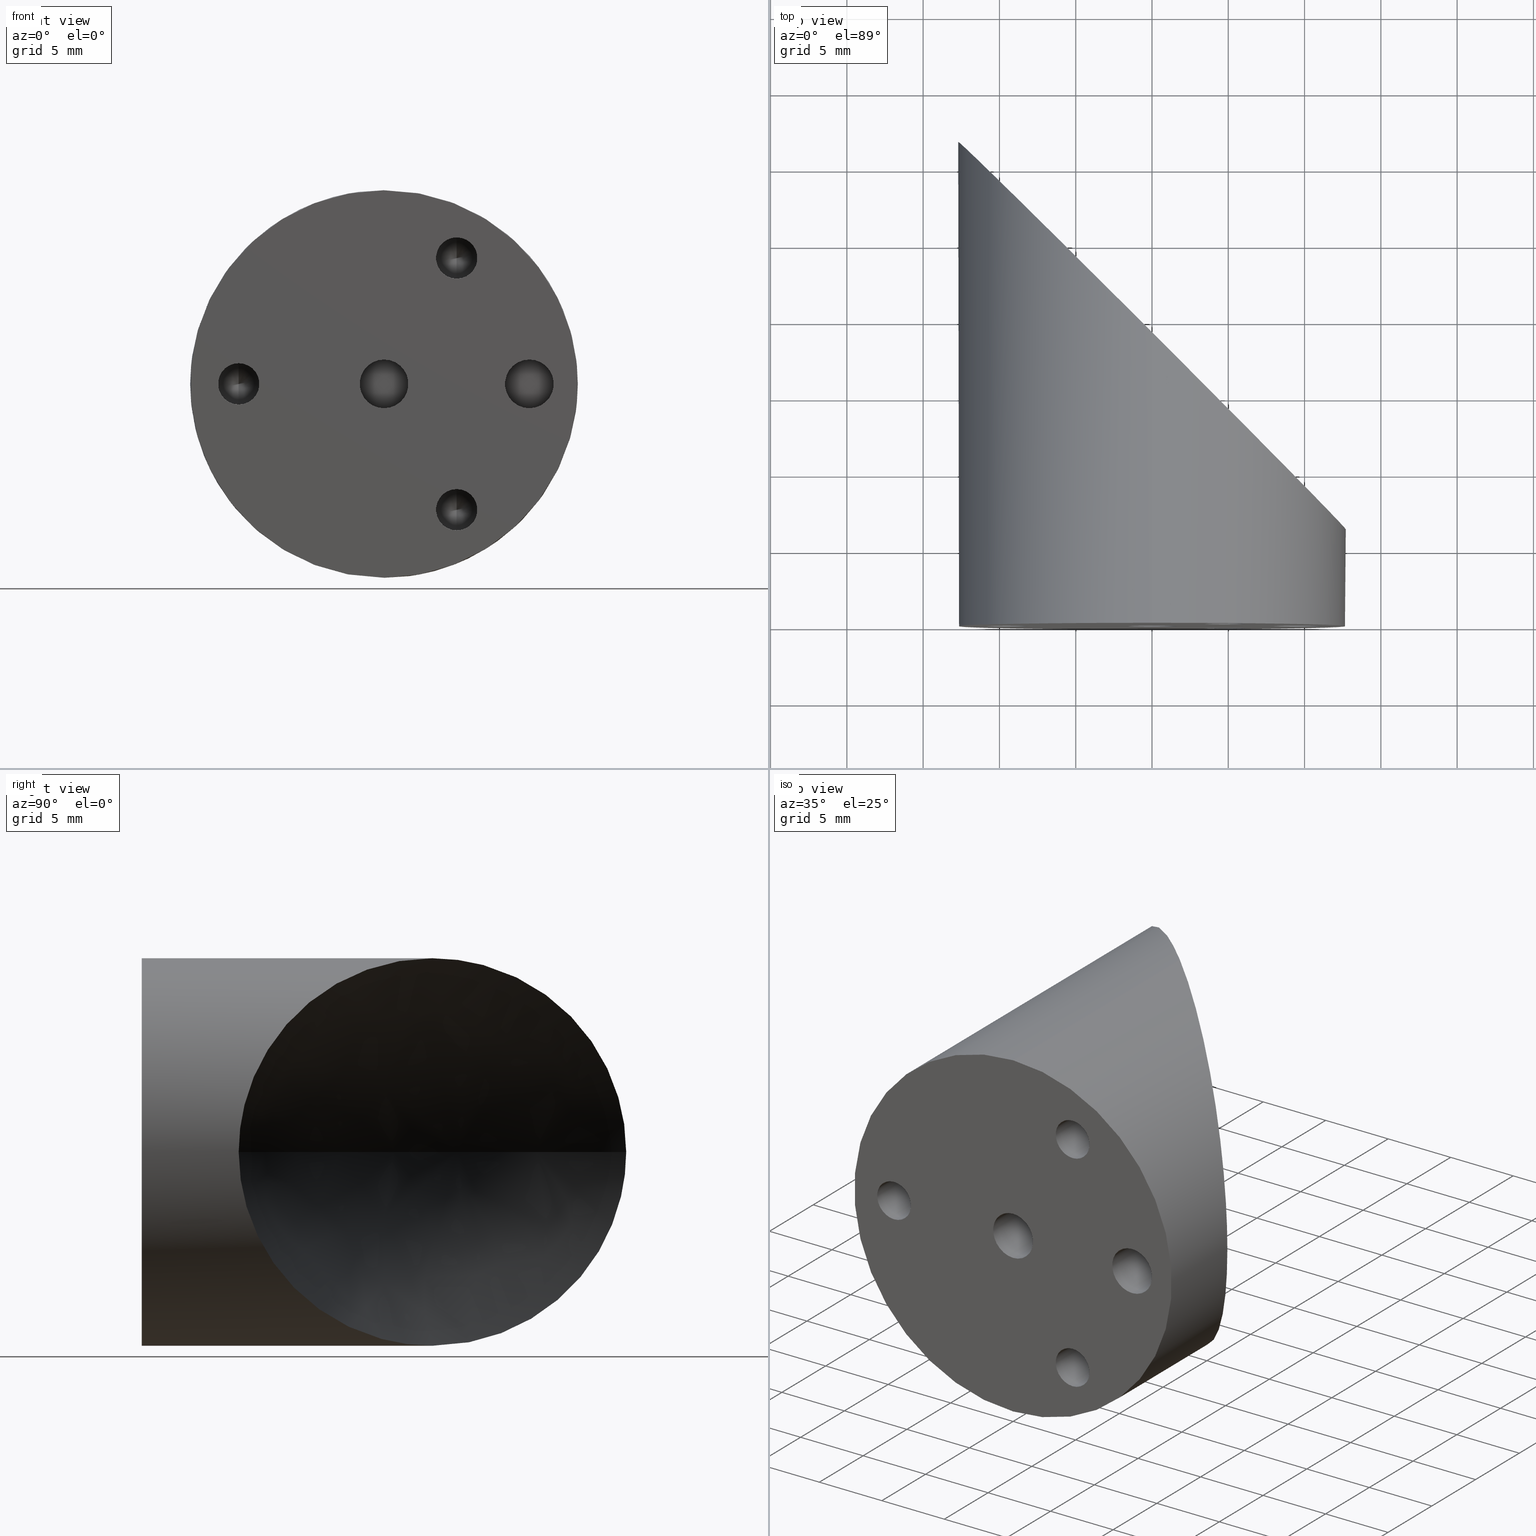
[diagram: canonical four-view strip — front | top / right | iso, engineering-drawing reading convention]
A machine part, canonical four-view strip (front | top / right | iso — engineering-drawing reading convention). The complete STEP part file that produces these views, byte-faithful:
ISO-10303-21;
HEADER;
FILE_DESCRIPTION (( 'STEP AP203' ),
    '1' );
FILE_NAME ('�25_35500.step',
    '2019-04-24T19:54:07',
    ( '' ),
    ( '' ),
    'SwSTEP 2.0',
    'SolidWorks 2018',
    '' );
FILE_SCHEMA (( 'CONFIG_CONTROL_DESIGN' ));
ENDSEC;

DATA;
#1 = VECTOR ( 'NONE', #509, 1000.000000000000000 ) ;
#2 = DIRECTION ( 'NONE',  ( 1.049727191138617956E-16, -0.5150380749100550437, 0.8571673007021117785 ) ) ;
#3 = ORIENTED_EDGE ( 'NONE', *, *, #448, .T. ) ;
#4 = CARTESIAN_POINT ( 'NONE',  ( -12.69249412803795884, 31.74249412803214199, 0.5052820024974280511 ) ) ;
#5 = CARTESIAN_POINT ( 'NONE',  ( 10.92750238881474090, 8.122497611184057220, -6.486682638810928658 ) ) ;
#6 = AXIS2_PLACEMENT_3D ( 'NONE', #440, #622, #628 ) ;
#7 = CARTESIAN_POINT ( 'NONE',  ( -5.608145036435865372, 24.65814503643128575, 11.41982166920501918 ) ) ;
#8 = CARTESIAN_POINT ( 'NONE',  ( 7.573415272198094961, 11.47658472779975725, -10.20226619455181094 ) ) ;
#9 = DATE_AND_TIME ( #483, #293 ) ;
#10 = DIRECTION ( 'NONE',  ( 1.049727191138618079E-16, -0.5150380749100549327, 0.8571673007021118895 ) ) ;
#11 = DIRECTION ( 'NONE',  ( -0.0000000000000000000, -1.000000000000000000, -0.0000000000000000000 ) ) ;
#12 = ORIENTED_EDGE ( 'NONE', *, *, #399, .T. ) ;
#13 = CARTESIAN_POINT ( 'NONE',  ( -10.18348070194067745, 29.23348070193521764, 7.600599108316940189 ) ) ;
#14 = DIRECTION ( 'NONE',  ( -0.0000000000000000000, -1.000000000000000000, -0.0000000000000000000 ) ) ;
#15 = CARTESIAN_POINT ( 'NONE',  ( -11.75175387139110583, 30.80175387138496035, 4.839139750495472292 ) ) ;
#16 = CARTESIAN_POINT ( 'NONE',  ( -1.554745915344213358E-13, 19.04999999999704130, -12.70000000000007567 ) ) ;
#17 = EDGE_CURVE ( 'NONE', #671, #646, #279, .T. ) ;
#18 = CARTESIAN_POINT ( 'NONE',  ( -1.554745915344213358E-13, 19.04999999999704130, -12.70000000000007567 ) ) ;
#19 = COORDINATED_UNIVERSAL_TIME_OFFSET ( 5, 0, .BEHIND. ) ;
#20 = CARTESIAN_POINT ( 'NONE',  ( 11.56254631237877817, 7.487453687619861853, 5.273548236710835724 ) ) ;
#21 = EDGE_CURVE ( 'NONE', #192, #497, #739, .T. ) ;
#22 = FACE_OUTER_BOUND ( 'NONE', #433, .T. ) ;
#23 = CIRCLE ( 'NONE', #124, 1.352549999999999253 ) ;
#24 = CARTESIAN_POINT ( 'NONE',  ( 0.7136360518803812614, 18.33636394811686188, 12.68501935683181436 ) ) ;
#25 = AXIS2_PLACEMENT_3D ( 'NONE', #292, #60, #676 ) ;
#26 = ORIENTED_EDGE ( 'NONE', *, *, #21, .T. ) ;
#27 = VERTEX_POINT ( 'NONE', #196 ) ;
#28 = CARTESIAN_POINT ( 'NONE',  ( 0.0000000000000000000, 0.0000000000000000000, 0.0000000000000000000 ) ) ;
#29 = CARTESIAN_POINT ( 'NONE',  ( 3.553757434003499860, 15.49624256599401839, -12.21445827631342418 ) ) ;
#30 = DIRECTION ( 'NONE',  ( 0.0000000000000000000, 1.000000000000000000, 0.0000000000000000000 ) ) ;
#31 = AXIS2_PLACEMENT_3D ( 'NONE', #359, #542, #782 ) ;
#32 = CARTESIAN_POINT ( 'NONE',  ( 0.0000000000000000000, 0.0000000000000000000, -12.69999999999999929 ) ) ;
#33 = CARTESIAN_POINT ( 'NONE',  ( -9.372236973100289248, 28.42223697309533037, -8.580475212564618204 ) ) ;
#34 = DIRECTION ( 'NONE',  ( 0.0000000000000000000, 0.0000000000000000000, -1.000000000000000000 ) ) ;
#35 = CARTESIAN_POINT ( 'NONE',  ( 1.193707575149340894, 12.62334279999809183, -8.939368213490443082 ) ) ;
#36 = FACE_OUTER_BOUND ( 'NONE', #330, .T. ) ;
#37 = ORIENTED_EDGE ( 'NONE', *, *, #90, .F. ) ;
#38 = EDGE_CURVE ( 'NONE', #604, #72, #437, .T. ) ;
#39 = ORIENTED_EDGE ( 'NONE', *, *, #581, .F. ) ;
#40 = EDGE_LOOP ( 'NONE', ( #687, #220, #517, #391 ) ) ;
#41 = DIRECTION ( 'NONE',  ( -0.0000000000000000000, -1.000000000000000000, -0.0000000000000000000 ) ) ;
#42 = ORIENTED_EDGE ( 'NONE', *, *, #17, .T. ) ;
#43 = CARTESIAN_POINT ( 'NONE',  ( 3.497473023158240935, 12.62334279999809183, -12.86232140901330112 ) ) ;
#44 = CARTESIAN_POINT ( 'NONE',  ( 14.58015167343994278, 6.274257199998505286, -6.353986776052699348 ) ) ;
#45 = CIRCLE ( 'NONE', #118, 1.352549999999999253 ) ;
#46 = DIRECTION ( 'NONE',  ( 0.0000000000000000000, 0.0000000000000000000, -1.000000000000000000 ) ) ;
#47 = FACE_OUTER_BOUND ( 'NONE', #661, .T. ) ;
#48 = ORIENTED_EDGE ( 'NONE', *, *, #367, .T. ) ;
#49 = AXIS2_PLACEMENT_3D ( 'NONE', #216, #408, #46 ) ;
#50 = CARTESIAN_POINT ( 'NONE',  ( -12.85240000000090532, 31.97905719999516450, -2.079933447696191706E-12 ) ) ;
#51 = CARTESIAN_POINT ( 'NONE',  ( 4.762500000000009948, 0.0000000000000000000, -8.248891971046772298 ) ) ;
#52 = FACE_OUTER_BOUND ( 'NONE', #392, .T. ) ;
#53 = CARTESIAN_POINT ( 'NONE',  ( 0.0000000000000000000, 0.0000000000000000000, 0.0000000000000000000 ) ) ;
#54 = ORIENTED_EDGE ( 'NONE', *, *, #578, .T. ) ;
#55 = VERTEX_POINT ( 'NONE', #566 ) ;
#56 = APPROVAL_STATUS ( 'not_yet_approved' ) ;
#57 = DIRECTION ( 'NONE',  ( -0.0000000000000000000, -1.000000000000000000, -0.0000000000000000000 ) ) ;
#58 = AXIS2_PLACEMENT_3D ( 'NONE', #462, #41, #520 ) ;
#59 = CC_DESIGN_PERSON_AND_ORGANIZATION_ASSIGNMENT ( #568, #285, ( #351 ) ) ;
#60 = DIRECTION ( 'NONE',  ( -0.0000000000000000000, -1.000000000000000000, -0.0000000000000000000 ) ) ;
#61 = ADVANCED_FACE ( 'NONE', ( #47 ), #310, .T. ) ;
#62 = CYLINDRICAL_SURFACE ( 'NONE', #655, 1.352549999999999253 ) ;
#63 = EDGE_LOOP ( 'NONE', ( #200, #3, #320, #461, #731 ) ) ;
#64 = DIRECTION ( 'NONE',  ( 0.0000000000000000000, 1.000000000000000000, 0.0000000000000000000 ) ) ;
#65 = VERTEX_POINT ( 'NONE', #579 ) ;
#66 = CYLINDRICAL_SURFACE ( 'NONE', #681, 1.593999999999998973 ) ;
#67 = CARTESIAN_POINT ( 'NONE',  ( -6.925631433273992776, 25.97563143326917512, 10.67235901554065514 ) ) ;
#68 = CARTESIAN_POINT ( 'NONE',  ( 10.19051452320380058, 8.859485476794548120, -7.591428080588519478 ) ) ;
#69 = AXIS2_PLACEMENT_3D ( 'NONE', #735, #119, #239 ) ;
#70 = CARTESIAN_POINT ( 'NONE',  ( -9.525000000000000355, 6.169999999999999929, 1.352549999999999253 ) ) ;
#71 = VECTOR ( 'NONE', #2, 1000.000000000000000 ) ;
#72 = VERTEX_POINT ( 'NONE', #212 ) ;
#73 = ORIENTED_EDGE ( 'NONE', *, *, #403, .F. ) ;
#74 = ORIENTED_EDGE ( 'NONE', *, *, #168, .T. ) ;
#75 = CARTESIAN_POINT ( 'NONE',  ( -0.7125630298000499296, 19.76256302979652091, 12.70000000000083951 ) ) ;
#76 = CARTESIAN_POINT ( 'NONE',  ( -9.525000000000000355, 0.0000000000000000000, -1.352549999999999253 ) ) ;
#77 = CARTESIAN_POINT ( 'NONE',  ( 12.69999999999990692, 6.349999999998527045, -0.5038967227124826476 ) ) ;
#78 = ADVANCED_FACE ( 'NONE', ( #677 ), #697, .F. ) ;
#79 = VECTOR ( 'NONE', #316, 1000.000000000000000 ) ;
#80 = CARTESIAN_POINT ( 'NONE',  ( -11.56407991278460479, 30.61407991280777807, 5.270275163643675320 ) ) ;
#81 = CARTESIAN_POINT ( 'NONE',  ( 12.57984097757650588, 6.470159022422377504, -1.761156337241454262 ) ) ;
#82 = LINE ( 'NONE', #424, #71 ) ;
#83 = VERTEX_POINT ( 'NONE', #156 ) ;
#84 = CARTESIAN_POINT ( 'NONE',  ( 12.08529452624549982, 6.964705473753187270, 3.933005294369428029 ) ) ;
#85 = CARTESIAN_POINT ( 'NONE',  ( -3.536057969781806865, 22.58605796977812830, -12.21969701679927844 ) ) ;
#86 = CARTESIAN_POINT ( 'NONE',  ( -12.70000000000056595, 31.74999999999483791, -1.927558305098982570E-12 ) ) ;
#87 = CARTESIAN_POINT ( 'NONE',  ( 0.0000000000000000000, 0.0000000000000000000, 0.0000000000000000000 ) ) ;
#88 = LINE ( 'NONE', #234, #426 ) ;
#89 = CARTESIAN_POINT ( 'NONE',  ( 7.876614981185150910, 11.17338501881254409, 9.970442349676716276 ) ) ;
#90 = EDGE_CURVE ( 'NONE', #432, #304, #336, .T. ) ;
#91 = CARTESIAN_POINT ( 'NONE',  ( -12.46055657107605263, 31.51055657107081842, -2.503858508733852517 ) ) ;
#92 = VECTOR ( 'NONE', #459, 1000.000000000000000 ) ;
#93 = CARTESIAN_POINT ( 'NONE',  ( -12.85240000000098526, 31.97905719999516450, 3.397495618173802472E-14 ) ) ;
#94 = VERTEX_POINT ( 'NONE', #32 ) ;
#95 = CARTESIAN_POINT ( 'NONE',  ( -11.56770164379194910, 30.61770164378661718, -5.262622158203639877 ) ) ;
#96 = CARTESIAN_POINT ( 'NONE',  ( 12.85239999999931726, 6.274257199998506174, -2.247395817304130183 ) ) ;
#97 = UNCERTAINTY_MEASURE_WITH_UNIT (LENGTH_MEASURE( 1.000000000000000082E-05 ), #237, 'distance_accuracy_value', 'NONE');
#98 = DIRECTION ( 'NONE',  ( -0.0000000000000000000, -1.000000000000000000, -0.0000000000000000000 ) ) ;
#99 = AXIS2_PLACEMENT_3D ( 'NONE', #720, #474, #466 ) ;
#100 = CARTESIAN_POINT ( 'NONE',  ( 9.525000000000000355, 0.0000000000000000000, 0.0000000000000000000 ) ) ;
#101 = DIRECTION ( 'NONE',  ( -0.0000000000000000000, -1.000000000000000000, -0.0000000000000000000 ) ) ;
#102 = AXIS2_PLACEMENT_3D ( 'NONE', #409, #469, #412 ) ;
#103 = CIRCLE ( 'NONE', #634, 12.69999999999999929 ) ;
#104 = ORIENTED_EDGE ( 'NONE', *, *, #706, .F. ) ;
#105 = CARTESIAN_POINT ( 'NONE',  ( 4.762500000000009948, 6.169999999999999929, -8.248891971046772298 ) ) ;
#106 = AXIS2_PLACEMENT_3D ( 'NONE', #602, #349, #675 ) ;
#107 = DIRECTION ( 'NONE',  ( -0.0000000000000000000, -1.000000000000000000, -0.0000000000000000000 ) ) ;
#108 = CARTESIAN_POINT ( 'NONE',  ( 0.0000000000000000000, 200.0000000000000000, 0.0000000000000000000 ) ) ;
#109 = DIRECTION ( 'NONE',  ( 0.0000000000000000000, 0.0000000000000000000, -1.000000000000000000 ) ) ;
#110 = CYLINDRICAL_SURFACE ( 'NONE', #25, 12.69999999999999929 ) ;
#111 = ORIENTED_EDGE ( 'NONE', *, *, #746, .F. ) ;
#112 = AXIS2_PLACEMENT_3D ( 'NONE', #694, #563, #750 ) ;
#113 = EDGE_LOOP ( 'NONE', ( #229, #183, #752, #712, #516 ) ) ;
#114 = CARTESIAN_POINT ( 'NONE',  ( 1.216571897409776781, 12.62334279999809183, 9.023565773777017185 ) ) ;
#115 = CC_DESIGN_SECURITY_CLASSIFICATION ( #605, ( #351 ) ) ;
#116 = MECHANICAL_CONTEXT ( 'NONE', #534, 'mechanical' ) ;
#117 = AXIS2_PLACEMENT_3D ( 'NONE', #270, #274, #654 ) ;
#118 = AXIS2_PLACEMENT_3D ( 'NONE', #397, #98, #153 ) ;
#119 = DIRECTION ( 'NONE',  ( -0.0000000000000000000, -1.000000000000000000, -0.0000000000000000000 ) ) ;
#120 = EDGE_CURVE ( 'NONE', #167, #55, #738, .T. ) ;
#121 = CARTESIAN_POINT ( 'NONE',  ( -12.70000000000056595, 31.74999999999483791, -1.927558305098982570E-12 ) ) ;
#122 = ORIENTED_EDGE ( 'NONE', *, *, #746, .T. ) ;
#123 = EDGE_LOOP ( 'NONE', ( #273, #173, #787 ) ) ;
#124 = AXIS2_PLACEMENT_3D ( 'NONE', #613, #352, #788 ) ;
#125 = CARTESIAN_POINT ( 'NONE',  ( 0.0000000000000000000, 0.0000000000000000000, 0.0000000000000000000 ) ) ;
#126 = DIRECTION ( 'NONE',  ( 0.0000000000000000000, -0.0000000000000000000, 1.000000000000000000 ) ) ;
#127 = FACE_OUTER_BOUND ( 'NONE', #438, .T. ) ;
#128 = DIRECTION ( 'NONE',  ( 0.0000000000000000000, 1.000000000000000000, 0.0000000000000000000 ) ) ;
#129 = CIRCLE ( 'NONE', #726, 1.352549999999998365 ) ;
#130 = EDGE_LOOP ( 'NONE', ( #770, #319, #48, #73 ) ) ;
#131 = ORIENTED_EDGE ( 'NONE', *, *, #384, .T. ) ;
#132 = CARTESIAN_POINT ( 'NONE',  ( 8.802940517945689436, 10.24705948205250472, -9.188963411443522133 ) ) ;
#133 = EDGE_LOOP ( 'NONE', ( #526, #191, #475 ) ) ;
#134 = CARTESIAN_POINT ( 'NONE',  ( 11.83646679624172826, 7.213533203756568923, -4.609351959705819901 ) ) ;
#135 = PERSON_AND_ORGANIZATION ( #584, #569 ) ;
#136 = CARTESIAN_POINT ( 'NONE',  ( -9.383076534110722733, 28.43307653410542457, 8.601012661518618430 ) ) ;
#137 = ADVANCED_FACE ( 'NONE', ( #777 ), #643, .F. ) ;
#138 = CARTESIAN_POINT ( 'NONE',  ( 12.08597738952143885, 6.964022610476890307, -3.930831638203718281 ) ) ;
#139 = FACE_BOUND ( 'NONE', #414, .T. ) ;
#140 = VERTEX_POINT ( 'NONE', #522 ) ;
#141 = CARTESIAN_POINT ( 'NONE',  ( 4.919003763060071144, 14.13099623696564144, 11.73128122438204635 ) ) ;
#142 = ADVANCED_FACE ( 'NONE', ( #496 ), #62, .F. ) ;
#143 = COORDINATED_UNIVERSAL_TIME_OFFSET ( 5, 0, .BEHIND. ) ;
#144 = EDGE_CURVE ( 'NONE', #211, #158, #360, .T. ) ;
#145 = COORDINATED_UNIVERSAL_TIME_OFFSET ( 5, 0, .BEHIND. ) ;
#146 = LINE ( 'NONE', #775, #181 ) ;
#147 = CARTESIAN_POINT ( 'NONE',  ( 9.525000000000000355, 4.320000000000000284, 1.593999999999998085 ) ) ;
#148 = ORIENTED_EDGE ( 'NONE', *, *, #355, .F. ) ;
#149 = EDGE_LOOP ( 'NONE', ( #406, #595 ) ) ;
#150 = DIRECTION ( 'NONE',  ( 0.0000000000000000000, -0.0000000000000000000, 1.000000000000000000 ) ) ;
#151 = CARTESIAN_POINT ( 'NONE',  ( 12.67001750688641337, 6.379982493112446917, 1.009839841561531282 ) ) ;
#152 = CARTESIAN_POINT ( 'NONE',  ( -12.22800456450823603, 31.27800456450304623, -3.465643066317030119 ) ) ;
#153 = DIRECTION ( 'NONE',  ( 0.0000000000000000000, 0.0000000000000000000, -1.000000000000000000 ) ) ;
#154 = DIRECTION ( 'NONE',  ( -0.0000000000000000000, -1.000000000000000000, -0.0000000000000000000 ) ) ;
#155 = AXIS2_PLACEMENT_3D ( 'NONE', #105, #656, #218 ) ;
#156 = CARTESIAN_POINT ( 'NONE',  ( 4.762500000000009948, 2.721777511104993564E-17, 6.896341971046772379 ) ) ;
#157 = ORIENTED_EDGE ( 'NONE', *, *, #217, .T. ) ;
#158 = VERTEX_POINT ( 'NONE', #271 ) ;
#159 = CARTESIAN_POINT ( 'NONE',  ( -9.525000000000000355, 6.169999999999999929, 0.0000000000000000000 ) ) ;
#160 = DIRECTION ( 'NONE',  ( 0.0000000000000000000, 0.0000000000000000000, -1.000000000000000000 ) ) ;
#161 = LOCAL_TIME ( 15, 54, 7.000000000000000000, #145 ) ;
#162 = CARTESIAN_POINT ( 'NONE',  ( -12.85240000000128191, 31.97905719999516450, 6.918252248153456740 ) ) ;
#163 = LINE ( 'NONE', #262, #1 ) ;
#164 = EDGE_CURVE ( 'NONE', #94, #374, #430, .T. ) ;
#165 = LINE ( 'NONE', #636, #404 ) ;
#166 = DIRECTION ( 'NONE',  ( 0.0000000000000000000, 0.0000000000000000000, -1.000000000000000000 ) ) ;
#167 = VERTEX_POINT ( 'NONE', #592 ) ;
#168 = EDGE_CURVE ( 'NONE', #769, #573, #685, .T. ) ;
#169 = CARTESIAN_POINT ( 'NONE',  ( 0.0000000000000000000, 200.0000000000000000, -12.69999999999999929 ) ) ;
#170 = DIRECTION ( 'NONE',  ( -0.0000000000000000000, -1.000000000000000000, -0.0000000000000000000 ) ) ;
#171 = CIRCLE ( 'NONE', #69, 1.352549999999999253 ) ;
#172 = ORIENTED_EDGE ( 'NONE', *, *, #489, .F. ) ;
#173 = ORIENTED_EDGE ( 'NONE', *, *, #290, .T. ) ;
#174 = EDGE_LOOP ( 'NONE', ( #755, #421 ) ) ;
#175 = CARTESIAN_POINT ( 'NONE',  ( 12.69999999999989981, 6.349999999998523492, 1.127986593019160086E-14 ) ) ;
#176 = PLANE ( 'NONE',  #789 ) ;
#177 = CARTESIAN_POINT ( 'NONE',  ( -9.525000000000000355, 0.0000000000000000000, 0.0000000000000000000 ) ) ;
#178 = FACE_OUTER_BOUND ( 'NONE', #603, .T. ) ;
#179 = CC_DESIGN_DATE_AND_TIME_ASSIGNMENT ( #773, #415, ( #765 ) ) ;
#180 = EDGE_CURVE ( 'NONE', #565, #94, #295, .T. ) ;
#181 = VECTOR ( 'NONE', #725, 1000.000000000000000 ) ;
#182 = EDGE_LOOP ( 'NONE', ( #663, #420 ) ) ;
#183 = ORIENTED_EDGE ( 'NONE', *, *, #399, .F. ) ;
#184 = DIRECTION ( 'NONE',  ( -0.0000000000000000000, -1.000000000000000000, -0.0000000000000000000 ) ) ;
#185 = ADVANCED_FACE ( 'NONE', ( #449 ), #593, .F. ) ;
#186 = DIRECTION ( 'NONE',  ( -0.0000000000000000000, -1.000000000000000000, -0.0000000000000000000 ) ) ;
#187 = CIRCLE ( 'NONE', #774, 1.352549999999999253 ) ;
#188 = EDGE_LOOP ( 'NONE', ( #111, #688, #631 ) ) ;
#189 = CARTESIAN_POINT ( 'NONE',  ( 1.263312371380120752E-11, 19.04999999998402416, 12.70000000000033680 ) ) ;
#190 = ORIENTED_EDGE ( 'NONE', *, *, #464, .F. ) ;
#191 = ORIENTED_EDGE ( 'NONE', *, *, #337, .T. ) ;
#192 = VERTEX_POINT ( 'NONE', #473 ) ;
#193 = CARTESIAN_POINT ( 'NONE',  ( -12.54863285549628493, 31.59863285549082690, 2.018979498588476140 ) ) ;
#194 = PERSON_AND_ORGANIZATION ( #584, #569 ) ;
#195 = ADVANCED_FACE ( 'NONE', ( #278 ), #345, .F. ) ;
#196 = CARTESIAN_POINT ( 'NONE',  ( 0.0000000000000000000, 7.960204194457993925E-19, -1.593999999999999417 ) ) ;
#197 = CARTESIAN_POINT ( 'NONE',  ( -1.430184995686038407, 20.48018499568265227, -12.63942547839698349 ) ) ;
#198 = CARTESIAN_POINT ( 'NONE',  ( 0.0000000000000000000, 0.0000000000000000000, -1.593999999999998973 ) ) ;
#199 = CIRCLE ( 'NONE', #6, 1.593999999999999417 ) ;
#200 = ORIENTED_EDGE ( 'NONE', *, *, #38, .F. ) ;
#201 = CARTESIAN_POINT ( 'NONE',  ( -6.932065637115210066, 25.98206563711046968, -10.66869366850831291 ) ) ;
#202 = AXIS2_PLACEMENT_3D ( 'NONE', #252, #753, #644 ) ;
#203 = CARTESIAN_POINT ( 'NONE',  ( 3.546809371714378933, 15.50319062831110450, 12.21637018378441120 ) ) ;
#204 = CARTESIAN_POINT ( 'NONE',  ( 8.796537155215176540, 10.25346284478268011, 9.195328755251470199 ) ) ;
#205 = EDGE_CURVE ( 'NONE', #304, #432, #718, .T. ) ;
#206 = CARTESIAN_POINT ( 'NONE',  ( -8.790063518122130048, 27.84006351811727242, -9.175955759525121991 ) ) ;
#207 = CARTESIAN_POINT ( 'NONE',  ( -11.05467639182481498, 31.97905719999516450, -13.46268852951650530 ) ) ;
#208 = AXIS2_PLACEMENT_3D ( 'NONE', #125, #346, #729 ) ;
#209 = LINE ( 'NONE', #728, #525 ) ;
#210 = ORIENTED_EDGE ( 'NONE', *, *, #403, .T. ) ;
#211 = VERTEX_POINT ( 'NONE', #529 ) ;
#212 = CARTESIAN_POINT ( 'NONE',  ( 12.69999999999989981, 6.349999999998523492, 1.127986593019160086E-14 ) ) ;
#213 = DIRECTION ( 'NONE',  ( 0.0000000000000000000, 0.0000000000000000000, -1.000000000000000000 ) ) ;
#214 = CARTESIAN_POINT ( 'NONE',  ( 12.54855033674667908, 6.501449663252166111, 2.020644594318357967 ) ) ;
#215 = APPROVAL_DATE_TIME ( #465, #600 ) ;
#216 = CARTESIAN_POINT ( 'NONE',  ( 4.762500000000009948, 6.169999999999999929, -8.248891971046772298 ) ) ;
#217 = EDGE_CURVE ( 'NONE', #55, #211, #129, .T. ) ;
#218 = DIRECTION ( 'NONE',  ( 0.0000000000000000000, 0.0000000000000000000, -1.000000000000000000 ) ) ;
#219 = LINE ( 'NONE', #254, #470 ) ;
#220 = ORIENTED_EDGE ( 'NONE', *, *, #706, .T. ) ;
#221 = EDGE_CURVE ( 'NONE', #55, #83, #146, .T. ) ;
#222 = DIRECTION ( 'NONE',  ( 0.0000000000000000000, 1.000000000000000000, 0.0000000000000000000 ) ) ;
#223 = CARTESIAN_POINT ( 'NONE',  ( 3.562840910452336196, 12.62334279999809183, 12.97299051482828780 ) ) ;
#224 = CIRCLE ( 'NONE', #510, 1.352549999999999253 ) ;
#225 = AXIS2_PLACEMENT_3D ( 'NONE', #257, #405, #491 ) ;
#226 = FACE_OUTER_BOUND ( 'NONE', #583, .T. ) ;
#227 = CARTESIAN_POINT ( 'NONE',  ( 4.762500000000009948, 6.169999999999999929, -6.896341971046773267 ) ) ;
#228 = ORIENTED_EDGE ( 'NONE', *, *, #489, .T. ) ;
#229 = ORIENTED_EDGE ( 'NONE', *, *, #448, .F. ) ;
#230 =( NAMED_UNIT ( * ) PLANE_ANGLE_UNIT ( ) SI_UNIT ( $, .RADIAN. ) );
#231 = CARTESIAN_POINT ( 'NONE',  ( 12.85239999999939720, 6.274257199998505286, -7.823602876655399996E-13 ) ) ;
#232 = CC_DESIGN_PERSON_AND_ORGANIZATION_ASSIGNMENT ( #658, #781, ( #765 ) ) ;
#233 = CARTESIAN_POINT ( 'NONE',  ( 4.762500000000009948, 0.0000000000000000000, 8.248891971046772298 ) ) ;
#234 = CARTESIAN_POINT ( 'NONE',  ( -9.525000000000000355, 6.169999999999999929, -1.352549999999999253 ) ) ;
#235 = APPROVAL_DATE_TIME ( #401, #626 ) ;
#236 = CARTESIAN_POINT ( 'NONE',  ( 4.762500000000009948, 6.169999999999999929, -9.601441971046769552 ) ) ;
#237 =( LENGTH_UNIT ( ) NAMED_UNIT ( * ) SI_UNIT ( .MILLI., .METRE. ) );
#238 = VECTOR ( 'NONE', #10, 1000.000000000000000 ) ;
#239 = DIRECTION ( 'NONE',  ( 0.0000000000000000000, 0.0000000000000000000, -1.000000000000000000 ) ) ;
#240 = MANIFOLD_SOLID_BREP ( '�3.1 (3.1) Diameter Hole1', #407 ) ;
#241 = DIRECTION ( 'NONE',  ( 0.0000000000000000000, 0.0000000000000000000, -1.000000000000000000 ) ) ;
#242 = CALENDAR_DATE ( 2019, 24, 4 ) ;
#243 = CARTESIAN_POINT ( 'NONE',  ( -9.525000000000002132, 6.982694030265727214, 0.0000000000000000000 ) ) ;
#244 = CARTESIAN_POINT ( 'NONE',  ( 4.762500000000009948, 6.169999999999999929, 8.248891971046772298 ) ) ;
#245 = CARTESIAN_POINT ( 'NONE',  ( 4.762500000000009948, 6.169999999999999929, 8.248891971046772298 ) ) ;
#246 = CYLINDRICAL_SURFACE ( 'NONE', #286, 1.352549999999999253 ) ;
#247 = EDGE_LOOP ( 'NONE', ( #37, #460, #553, #39 ) ) ;
#248 = CARTESIAN_POINT ( 'NONE',  ( -4.931400308082990236, 23.98140030807955725, 11.72655414749607417 ) ) ;
#249 = ADVANCED_FACE ( 'NONE', ( #36 ), #696, .T. ) ;
#250 = AXIS2_PLACEMENT_3D ( 'NONE', #740, #368, #620 ) ;
#251 = VECTOR ( 'NONE', #365, 1000.000000000000000 ) ;
#252 = CARTESIAN_POINT ( 'NONE',  ( 9.525000000000000355, 4.320000000000000284, 0.0000000000000000000 ) ) ;
#253 = ADVANCED_FACE ( 'NONE', ( #761 ), #370, .T. ) ;
#254 = CARTESIAN_POINT ( 'NONE',  ( -9.525000000000000355, 0.0000000000000000000, 1.352549999999999253 ) ) ;
#255 = ORIENTED_EDGE ( 'NONE', *, *, #334, .T. ) ;
#256 = CARTESIAN_POINT ( 'NONE',  ( 1.787247943883846002, 17.26275205611327479, 12.57874327586127450 ) ) ;
#257 = CARTESIAN_POINT ( 'NONE',  ( 0.0000000000000000000, 4.320000000000000284, 0.0000000000000000000 ) ) ;
#258 = COORDINATED_UNIVERSAL_TIME_OFFSET ( 5, 0, .BEHIND. ) ;
#259 = CARTESIAN_POINT ( 'NONE',  ( -10.45930929426372380, 29.50930929425880933, -7.254707744569485861 ) ) ;
#260 = CONICAL_SURFACE ( 'NONE', #106, 1.352549999999999253, 1.029744258676653645 ) ;
#261 = B_SPLINE_CURVE_WITH_KNOTS ( 'NONE', 3,
 ( #121, #294, #4, #554, #306, #193, #439, #364, #683, #15, #80, #504, #744, #302, #13, #136, #311, #428, #67, #7, #248, #501, #632, #556, #682, #434, #75, #189 ),
 .UNSPECIFIED., .F., .F.,
 ( 4, 2, 2, 2, 2, 2, 2, 2, 2, 2, 2, 2, 2, 4 ),
 ( 0.02405136362947138048, 0.02480170670295873264, 0.02555204977644608133, 0.02705273592342078218, 0.02855342207039547608, 0.03005410821737017346, 0.03155479436434487084, 0.03305548051131956822, 0.03605685280526895603, 0.03905822509921835772, 0.04205959739316775248, 0.04356028354014244292, 0.04506096968711714029, 0.04806234198106654198 ),
 .UNSPECIFIED. ) ;
#262 = CARTESIAN_POINT ( 'NONE',  ( 9.525000000000000355, 0.0000000000000000000, -1.593999999999998973 ) ) ;
#263 = VECTOR ( 'NONE', #184, 1000.000000000000000 ) ;
#264 = VERTEX_POINT ( 'NONE', #344 ) ;
#265 = ORIENTED_EDGE ( 'NONE', *, *, #144, .T. ) ;
#266 = CARTESIAN_POINT ( 'NONE',  ( -12.55090626851523083, 31.60090626850951168, -2.004201387060291939 ) ) ;
#267 = DIRECTION ( 'NONE',  ( 0.0000000000000000000, 0.0000000000000000000, -1.000000000000000000 ) ) ;
#268 = PRODUCT_RELATED_PRODUCT_CATEGORY ( 'detail', '', ( #635 ) ) ;
#269 = CARTESIAN_POINT ( 'NONE',  ( -5.594886386475728557, 24.64488638647139851, -11.40733878612453367 ) ) ;
#270 = CARTESIAN_POINT ( 'NONE',  ( 4.762500000000009948, 0.0000000000000000000, -8.248891971046772298 ) ) ;
#271 = CARTESIAN_POINT ( 'NONE',  ( 4.762500000000009948, 2.721777511104993564E-17, 9.601441971046771329 ) ) ;
#272 = CONICAL_SURFACE ( 'NONE', #343, 1.352549999999997477, 1.029744258676653423 ) ;
#273 = ORIENTED_EDGE ( 'NONE', *, *, #337, .F. ) ;
#274 = DIRECTION ( 'NONE',  ( -0.0000000000000000000, -1.000000000000000000, -0.0000000000000000000 ) ) ;
#275 = CALENDAR_DATE ( 2019, 24, 4 ) ;
#276 = CONICAL_SURFACE ( 'NONE', #668, 1.352549999999998365, 1.029744258676653423 ) ;
#277 = CARTESIAN_POINT ( 'NONE',  ( 14.61244340976322320, 6.274257199998505286, 6.408657314325216348 ) ) ;
#278 = FACE_OUTER_BOUND ( 'NONE', #247, .T. ) ;
#279 = CIRCLE ( 'NONE', #202, 1.593999999999998085 ) ;
#280 = EDGE_CURVE ( 'NONE', #432, #645, #388, .T. ) ;
#281 = CARTESIAN_POINT ( 'NONE',  ( 4.762500000000009948, 6.169999999999999929, 8.248891971046772298 ) ) ;
#282 = CARTESIAN_POINT ( 'NONE',  ( 4.762500000000009948, 2.721777511104993564E-17, -9.601441971046771329 ) ) ;
#283 = APPROVAL_STATUS ( 'not_yet_approved' ) ;
#284 = DIRECTION ( 'NONE',  ( 0.0000000000000000000, 0.0000000000000000000, -1.000000000000000000 ) ) ;
#285 = PERSON_AND_ORGANIZATION_ROLE ( 'creator' ) ;
#286 = AXIS2_PLACEMENT_3D ( 'NONE', #233, #736, #362 ) ;
#287 = ORIENTED_EDGE ( 'NONE', *, *, #581, .T. ) ;
#288 = CARTESIAN_POINT ( 'NONE',  ( 0.0000000000000000000, 0.0000000000000000000, 0.0000000000000000000 ) ) ;
#289 = CARTESIAN_POINT ( 'NONE',  ( -9.525000000000000355, 2.721777511104993564E-17, 1.352549999999999253 ) ) ;
#290 = EDGE_CURVE ( 'NONE', #647, #432, #572, .T. ) ;
#291 = AXIS2_PLACEMENT_3D ( 'NONE', #723, #170, #597 ) ;
#292 = CARTESIAN_POINT ( 'NONE',  ( 0.0000000000000000000, 200.0000000000000000, 0.0000000000000000000 ) ) ;
#293 = LOCAL_TIME ( 15, 54, 7.000000000000000000, #638 ) ;
#294 = CARTESIAN_POINT ( 'NONE',  ( -12.70000000000060147, 31.74999999999486633, 0.2522152414954794142 ) ) ;
#295 = LINE ( 'NONE', #169, #617 ) ;
#296 = PLANE ( 'NONE',  #299 ) ;
#297 = DIRECTION ( 'NONE',  ( -0.0000000000000000000, -1.000000000000000000, -0.0000000000000000000 ) ) ;
#298 = CARTESIAN_POINT ( 'NONE',  ( 12.69999999999989981, 6.349999999998523492, 1.127986593019160086E-14 ) ) ;
#299 = AXIS2_PLACEMENT_3D ( 'NONE', #416, #64, #476 ) ;
#300 = DIRECTION ( 'NONE',  ( 0.0000000000000000000, 0.0000000000000000000, -1.000000000000000000 ) ) ;
#301 = ADVANCED_FACE ( 'NONE', ( #552 ), #110, .T. ) ;
#302 = CARTESIAN_POINT ( 'NONE',  ( -10.43874274645179767, 29.48874274644663274, 7.247256372390158852 ) ) ;
#303 = AXIS2_PLACEMENT_3D ( 'NONE', #53, #222, #722 ) ;
#304 = VERTEX_POINT ( 'NONE', #236 ) ;
#305 = AXIS2_PLACEMENT_3D ( 'NONE', #244, #691, #760 ) ;
#306 = CARTESIAN_POINT ( 'NONE',  ( -12.63908451001615241, 31.68908451001066595, 1.267737724498535057 ) ) ;
#307 = ADVANCED_FACE ( 'NONE', ( #533 ), #246, .F. ) ;
#308 = CARTESIAN_POINT ( 'NONE',  ( 12.54206478576906925, 6.507935214229819465, -2.012280748583637813 ) ) ;
#309 = DIRECTION ( 'NONE',  ( 0.0000000000000000000, 0.0000000000000000000, -1.000000000000000000 ) ) ;
#310 =( BOUNDED_SURFACE ( )  B_SPLINE_SURFACE ( 2, 3, ( 
 ( #93, #711, #207, #395 ),
 ( #513, #575, #35, #43 ),
 ( #456, #96, #650, #44 ) ),
 .UNSPECIFIED., .F., .F., .T. ) 
 B_SPLINE_SURFACE_WITH_KNOTS ( ( 3, 3 ),
 ( 4, 4 ),
 ( 0.4973165294300106454, 0.4991197646337484639 ),
 ( 0.0000000000000000000, 1.000000000000000000 ),
 .UNSPECIFIED. ) 
 GEOMETRIC_REPRESENTATION_ITEM ( )  RATIONAL_B_SPLINE_SURFACE ( (
 ( 1.000000000000000000, 0.9766414868451724907, 0.9766414868451724907, 1.000000000000000000),
 ( 1.000000000000000000, 0.9766414868451724907, 0.9766414868451724907, 1.000000000000000000),
 ( 1.000000000000000000, 0.9766414868451724907, 0.9766414868451724907, 1.000000000000000000) ) ) 
 REPRESENTATION_ITEM ( '' )  SURFACE ( )  );
#311 = CARTESIAN_POINT ( 'NONE',  ( -8.803671973449194610, 27.85367197344493917, 9.189081186822773972 ) ) ;
#312 = CARTESIAN_POINT ( 'NONE',  ( 1.263312371380120752E-11, 19.04999999998402416, 12.70000000000033680 ) ) ;
#313 = CARTESIAN_POINT ( 'NONE',  ( 9.376833469310227542, 9.673166530687808518, 8.608697395598451152 ) ) ;
#314 = B_SPLINE_CURVE_WITH_KNOTS ( 'NONE', 2,
 ( #486, #539, #175 ),
 .UNSPECIFIED., .F., .F.,
 ( 3, 3 ),
 ( 0.4973272205478193597, 0.4991090735159397496 ),
 .UNSPECIFIED. ) ;
#315 = FACE_BOUND ( 'NONE', #499, .T. ) ;
#316 = DIRECTION ( 'NONE',  ( -0.0000000000000000000, -1.000000000000000000, -0.0000000000000000000 ) ) ;
#317 = LINE ( 'NONE', #70, #238 ) ;
#318 = DIRECTION ( 'NONE',  ( -0.0000000000000000000, -1.000000000000000000, -0.0000000000000000000 ) ) ;
#319 = ORIENTED_EDGE ( 'NONE', *, *, #498, .T. ) ;
#320 = ORIENTED_EDGE ( 'NONE', *, *, #350, .T. ) ;
#321 = ORIENTED_EDGE ( 'NONE', *, *, #17, .F. ) ;
#322 = CARTESIAN_POINT ( 'NONE',  ( 7.561611379900086582, 11.48838862009781181, 10.21109426995751690 ) ) ;
#323 = CC_DESIGN_APPROVAL ( #600, ( #605 ) ) ;
#324 = CARTESIAN_POINT ( 'NONE',  ( -0.7187214910870134421, 19.76872149108379872, -12.70000000000007034 ) ) ;
#325 = CARTESIAN_POINT ( 'NONE',  ( 5.605679513964053839, 13.44432048603375840, -11.42145074648612635 ) ) ;
#326 = CARTESIAN_POINT ( 'NONE',  ( 10.92500611823506595, 8.124993881763446169, 6.490944277360388703 ) ) ;
#327 = EDGE_CURVE ( 'NONE', #167, #211, #82, .T. ) ;
#328 = APPROVAL ( #56, 'UNSPECIFIED' ) ;
#329 = LINE ( 'NONE', #76, #730 ) ;
#330 = EDGE_LOOP ( 'NONE', ( #148, #12, #535 ) ) ;
#331 = CARTESIAN_POINT ( 'NONE',  ( 4.762500000000009948, 0.0000000000000000000, 8.248891971046772298 ) ) ;
#332 = DIRECTION ( 'NONE',  ( -0.0000000000000000000, -1.000000000000000000, -0.0000000000000000000 ) ) ;
#333 = PERSON_AND_ORGANIZATION ( #584, #569 ) ;
#334 = EDGE_CURVE ( 'NONE', #27, #518, #710, .T. ) ;
#335 = AXIS2_PLACEMENT_3D ( 'NONE', #649, #758, #267 ) ;
#336 = CIRCLE ( 'NONE', #155, 1.352549999999997477 ) ;
#337 = EDGE_CURVE ( 'NONE', #647, #304, #209, .T. ) ;
#338 = VERTEX_POINT ( 'NONE', #243 ) ;
#339 = DIRECTION ( 'NONE',  ( -0.0000000000000000000, -1.000000000000000000, -0.0000000000000000000 ) ) ;
#340 = DIRECTION ( 'NONE',  ( -0.0000000000000000000, -1.000000000000000000, -0.0000000000000000000 ) ) ;
#341 = FACE_OUTER_BOUND ( 'NONE', #130, .T. ) ;
#342 = FACE_BOUND ( 'NONE', #182, .T. ) ;
#343 = AXIS2_PLACEMENT_3D ( 'NONE', #674, #57, #494 ) ;
#344 = CARTESIAN_POINT ( 'NONE',  ( -9.525000000000000355, 6.169999999999999929, -1.352549999999999253 ) ) ;
#345 = CYLINDRICAL_SURFACE ( 'NONE', #610, 1.352549999999999253 ) ;
#346 = DIRECTION ( 'NONE',  ( 0.0000000000000000000, 0.0000000000000000000, 1.000000000000000000 ) ) ;
#347 = ORIENTED_EDGE ( 'NONE', *, *, #120, .T. ) ;
#348 = ORIENTED_EDGE ( 'NONE', *, *, #221, .T. ) ;
#349 = DIRECTION ( 'NONE',  ( -0.0000000000000000000, -1.000000000000000000, -0.0000000000000000000 ) ) ;
#350 = EDGE_CURVE ( 'NONE', #374, #94, #103, .T. ) ;
#351 = PRODUCT_DEFINITION_FORMATION_WITH_SPECIFIED_SOURCE ( 'ANY', '', #635, .NOT_KNOWN. ) ;
#352 = DIRECTION ( 'NONE',  ( -0.0000000000000000000, -1.000000000000000000, -0.0000000000000000000 ) ) ;
#353 = PERSON_AND_ORGANIZATION_ROLE ( 'design_owner' ) ;
#354 = PERSON_AND_ORGANIZATION ( #584, #569 ) ;
#355 = EDGE_CURVE ( 'NONE', #719, #72, #314, .T. ) ;
#356 = SHAPE_DEFINITION_REPRESENTATION ( #708, #611 ) ;
#357 = DIRECTION ( 'NONE',  ( -0.0000000000000000000, -1.000000000000000000, -0.0000000000000000000 ) ) ;
#358 = DESIGN_CONTEXT ( 'detailed design', #481, 'design' ) ;
#359 = CARTESIAN_POINT ( 'NONE',  ( 0.0000000000000000000, 7.960204194457993925E-19, 0.0000000000000000000 ) ) ;
#360 = LINE ( 'NONE', #670, #506 ) ;
#361 = ORIENTED_EDGE ( 'NONE', *, *, #538, .F. ) ;
#362 = DIRECTION ( 'NONE',  ( 0.0000000000000000000, 0.0000000000000000000, -1.000000000000000000 ) ) ;
#363 = ADVANCED_FACE ( 'NONE', ( #226 ), #296, .F. ) ;
#364 = CARTESIAN_POINT ( 'NONE',  ( -12.22787846955891489, 31.27787846955363449, 3.465771320355718554 ) ) ;
#365 = DIRECTION ( 'NONE',  ( -0.0000000000000000000, -1.000000000000000000, -0.0000000000000000000 ) ) ;
#366 = ADVANCED_FACE ( 'NONE', ( #52 ), #176, .F. ) ;
#367 = EDGE_CURVE ( 'NONE', #785, #65, #23, .T. ) ;
#368 = DIRECTION ( 'NONE',  ( -0.0000000000000000000, -1.000000000000000000, -0.0000000000000000000 ) ) ;
#369 = CARTESIAN_POINT ( 'NONE',  ( 7.886829916385824646, 11.16317008361223451, -9.962309795164852488 ) ) ;
#370 = CYLINDRICAL_SURFACE ( 'NONE', #598, 12.69999999999999929 ) ;
#371 = CC_DESIGN_PERSON_AND_ORGANIZATION_ASSIGNMENT ( #354, #537, ( #351 ) ) ;
#372 = ORIENTED_EDGE ( 'NONE', *, *, #327, .T. ) ;
#373 = ORIENTED_EDGE ( 'NONE', *, *, #657, .F. ) ;
#374 = VERTEX_POINT ( 'NONE', #418 ) ;
#375 = CARTESIAN_POINT ( 'NONE',  ( 4.762500000000009948, 6.169999999999999929, -6.896341971046773267 ) ) ;
#376 = CALENDAR_DATE ( 2019, 24, 4 ) ;
#377 = CARTESIAN_POINT ( 'NONE',  ( 2.849473519739901484, 16.20052648025738407, 12.39704203074546740 ) ) ;
#378 = EDGE_CURVE ( 'NONE', #65, #785, #187, .T. ) ;
#379 = CONICAL_SURFACE ( 'NONE', #305, 1.352549999999998365, 1.029744258676653423 ) ;
#380 = CARTESIAN_POINT ( 'NONE',  ( 11.14949063026454468, 7.900509369734040277, 6.098495463346935708 ) ) ;
#381 = ORIENTED_EDGE ( 'NONE', *, *, #120, .F. ) ;
#382 = ORIENTED_EDGE ( 'NONE', *, *, #144, .F. ) ;
#383 = DIRECTION ( 'NONE',  ( 0.0000000000000000000, 0.0000000000000000000, -1.000000000000000000 ) ) ;
#384 = EDGE_CURVE ( 'NONE', #264, #140, #171, .T. ) ;
#385 = CARTESIAN_POINT ( 'NONE',  ( 4.762500000000009948, 2.721777511104993564E-17, -6.896341971046772379 ) ) ;
#386 = AXIS2_PLACEMENT_3D ( 'NONE', #245, #11, #741 ) ;
#387 = CARTESIAN_POINT ( 'NONE',  ( 1.952086997840880388E-16, 7.960204194457993925E-19, 1.593999999999999417 ) ) ;
#388 = LINE ( 'NONE', #727, #263 ) ;
#389 = CARTESIAN_POINT ( 'NONE',  ( -10.94289192893972640, 29.99289192893452594, -6.512355137024056440 ) ) ;
#390 = CARTESIAN_POINT ( 'NONE',  ( 6.601847638495537574, 12.44815236150241944, -10.85593859369203251 ) ) ;
#391 = ORIENTED_EDGE ( 'NONE', *, *, #625, .F. ) ;
#392 = EDGE_LOOP ( 'NONE', ( #544, #26 ) ) ;
#393 = AXIS2_PLACEMENT_3D ( 'NONE', #28, #455, #383 ) ;
#394 = ORIENTED_EDGE ( 'NONE', *, *, #217, .F. ) ;
#395 = CARTESIAN_POINT ( 'NONE',  ( -7.585205627123436045, 31.97905719999516450, -19.37065604197389135 ) ) ;
#396 = B_SPLINE_CURVE_WITH_KNOTS ( 'NONE', 3,
 ( #766, #324, #197, #443, #85, #507, #762, #269, #567, #201, #641, #709, #206, #33, #756, #259, #389, #95, #514, #701, #152, #91, #266, #447, #577, #86 ),
 .UNSPECIFIED., .F., .F.,
 ( 4, 2, 2, 2, 2, 2, 2, 2, 2, 2, 2, 2, 4 ),
 ( 0.0000000000000000000, 0.003006420453683925163, 0.006012840907367850325, 0.007516051134209812690, 0.009019261361051775922, 0.01202568181473569892, 0.01352889204157765694, 0.01503210226841961844, 0.01803852272210354143, 0.01954173294894549773, 0.02104494317578746096, 0.02254815340262942072, 0.02405136362947138048 ),
 .UNSPECIFIED. ) ;
#397 = CARTESIAN_POINT ( 'NONE',  ( 4.762500000000009948, 2.721777511104993564E-17, 8.248891971046772298 ) ) ;
#398 = CARTESIAN_POINT ( 'NONE',  ( 4.762500000000009948, 6.169999999999999929, 6.896341971046773267 ) ) ;
#399 = EDGE_CURVE ( 'NONE', #719, #604, #261, .T. ) ;
#400 = CARTESIAN_POINT ( 'NONE',  ( 12.69999999999989981, 6.349999999998523492, 1.127986593019160086E-14 ) ) ;
#401 = DATE_AND_TIME ( #376, #524 ) ;
#402 = CC_DESIGN_APPROVAL ( #328, ( #351 ) ) ;
#403 = EDGE_CURVE ( 'NONE', #264, #65, #329, .T. ) ;
#404 = VECTOR ( 'NONE', #492, 1000.000000000000000 ) ;
#405 = DIRECTION ( 'NONE',  ( -0.0000000000000000000, -1.000000000000000000, -0.0000000000000000000 ) ) ;
#406 = ORIENTED_EDGE ( 'NONE', *, *, #164, .F. ) ;
#407 = CLOSED_SHELL ( 'NONE', ( #61, #690, #137, #748, #754, #307, #684, #195, #185, #253, #301, #614, #249, #547, #78, #608, #142, #425, #621, #366, #505, #363, #743 ) ) ;
#408 = DIRECTION ( 'NONE',  ( -0.0000000000000000000, -1.000000000000000000, -0.0000000000000000000 ) ) ;
#409 = CARTESIAN_POINT ( 'NONE',  ( 9.525000000000000355, 7.960204194457993925E-19, 0.0000000000000000000 ) ) ;
#410 = VECTOR ( 'NONE', #332, 1000.000000000000000 ) ;
#411 = VECTOR ( 'NONE', #482, 1000.000000000000000 ) ;
#412 = DIRECTION ( 'NONE',  ( 0.0000000000000000000, 0.0000000000000000000, -1.000000000000000000 ) ) ;
#413 = FACE_OUTER_BOUND ( 'NONE', #149, .T. ) ;
#414 = EDGE_LOOP ( 'NONE', ( #662, #585 ) ) ;
#415 = DATE_TIME_ROLE ( 'creation_date' ) ;
#416 = CARTESIAN_POINT ( 'NONE',  ( 9.524999999999998579, 4.320000000000000284, 0.0000000000000000000 ) ) ;
#417 = DIRECTION ( 'NONE',  ( -0.0000000000000000000, -1.000000000000000000, -0.0000000000000000000 ) ) ;
#418 = CARTESIAN_POINT ( 'NONE',  ( 1.555301434917138433E-15, 0.0000000000000000000, 12.69999999999999929 ) ) ;
#419 = EDGE_LOOP ( 'NONE', ( #382, #394, #348, #653 ) ) ;
#420 = ORIENTED_EDGE ( 'NONE', *, *, #578, .F. ) ;
#421 = ORIENTED_EDGE ( 'NONE', *, *, #367, .F. ) ;
#422 = CARTESIAN_POINT ( 'NONE',  ( -9.525000000000000355, 2.721777511104993564E-17, 0.0000000000000000000 ) ) ;
#423 = PERSON_AND_ORGANIZATION_ROLE ( 'classification_officer' ) ;
#424 = CARTESIAN_POINT ( 'NONE',  ( 4.762500000000009948, 6.169999999999999929, 9.601441971046769552 ) ) ;
#425 = ADVANCED_FACE ( 'NONE', ( #515 ), #667, .F. ) ;
#426 = VECTOR ( 'NONE', #784, 1000.000000000000000 ) ;
#427 = AXIS2_PLACEMENT_3D ( 'NONE', #87, #30, #150 ) ;
#428 = CARTESIAN_POINT ( 'NONE',  ( -7.567164408986683632, 26.61716440898262803, 10.23141613274917816 ) ) ;
#429 = CARTESIAN_POINT ( 'NONE',  ( 10.44753238245698412, 8.602467617541741163, -7.234391973878357085 ) ) ;
#430 = CIRCLE ( 'NONE', #303, 12.69999999999999929 ) ;
#431 = ORIENTED_EDGE ( 'NONE', *, *, #355, .T. ) ;
#432 = VERTEX_POINT ( 'NONE', #375 ) ;
#433 = EDGE_LOOP ( 'NONE', ( #619, #347, #157 ) ) ;
#434 = CARTESIAN_POINT ( 'NONE',  ( -1.422368097273099208, 20.47236809726976503, 12.64045753939615935 ) ) ;
#435 = CARTESIAN_POINT ( 'NONE',  ( 12.45302709389220652, 6.596972906106670642, -2.504950917749777961 ) ) ;
#436 = EDGE_CURVE ( 'NONE', #646, #671, #564, .T. ) ;
#437 = B_SPLINE_CURVE_WITH_KNOTS ( 'NONE', 3,
 ( #450, #700, #24, #561, #256, #377, #203, #141, #703, #707, #571, #322, #89, #204, #313, #757, #648, #326, #380, #20, #442, #84, #771, #768, #214, #151, #586, #400 ),
 .UNSPECIFIED., .F., .F.,
 ( 4, 2, 2, 2, 2, 2, 2, 2, 2, 2, 2, 2, 2, 4 ),
 ( 0.04806234198106654198, 0.04956382659060609014, 0.05106531120014564523, 0.05406828041922474154, 0.05707124963830384479, 0.05857273424784339294, 0.06007421885738294109, 0.06307718807646203740, 0.06457867268600159250, 0.06608015729554113371, 0.06758164190508068880, 0.06908312651462024390, 0.07058461112415978511, 0.07208609573369934020 ),
 .UNSPECIFIED. ) ;
#438 = EDGE_LOOP ( 'NONE', ( #451, #228, #54, #596 ) ) ;
#439 = CARTESIAN_POINT ( 'NONE',  ( -12.45956477514257443, 31.50956477513724963, 2.508351714837697255 ) ) ;
#440 = CARTESIAN_POINT ( 'NONE',  ( 0.0000000000000000000, 7.960204194457993925E-19, 0.0000000000000000000 ) ) ;
#441 = PLANE ( 'NONE',  #427 ) ;
#442 = CARTESIAN_POINT ( 'NONE',  ( 11.75198745430882497, 7.298012545689823938, 4.838766919929634369 ) ) ;
#443 = CARTESIAN_POINT ( 'NONE',  ( -2.838850519020470475, 21.88885051901684875, -12.39925131919235568 ) ) ;
#444 = CARTESIAN_POINT ( 'NONE',  ( 9.525000000000000355, 4.320000000000000284, -1.593999999999998085 ) ) ;
#445 = CYLINDRICAL_SURFACE ( 'NONE', #472, 1.352549999999999253 ) ;
#446 = CARTESIAN_POINT ( 'NONE',  ( 0.0000000000000000000, 4.320000000000000284, 0.0000000000000000000 ) ) ;
#447 = CARTESIAN_POINT ( 'NONE',  ( -12.66995351156120186, 31.71995351155545251, -1.007149132863329299 ) ) ;
#448 = EDGE_CURVE ( 'NONE', #604, #374, #660, .T. ) ;
#449 = FACE_OUTER_BOUND ( 'NONE', #123, .T. ) ;
#450 = CARTESIAN_POINT ( 'NONE',  ( 1.263312371380120752E-11, 19.04999999998402416, 12.70000000000033680 ) ) ;
#451 = ORIENTED_EDGE ( 'NONE', *, *, #436, .F. ) ;
#452 = EDGE_LOOP ( 'NONE', ( #190, #122, #131 ) ) ;
#453 = ORIENTED_EDGE ( 'NONE', *, *, #786, .T. ) ;
#454 = CARTESIAN_POINT ( 'NONE',  ( 4.762500000000008171, 6.982694030265727214, -8.248891971046772298 ) ) ;
#455 = DIRECTION ( 'NONE',  ( -0.0000000000000000000, -1.000000000000000000, -0.0000000000000000000 ) ) ;
#456 = CARTESIAN_POINT ( 'NONE',  ( 12.85239999999931726, 6.274257199998505286, 1.114450753902997696E-14 ) ) ;
#457 = LOCAL_TIME ( 15, 54, 7.000000000000000000, #258 ) ;
#458 = CARTESIAN_POINT ( 'NONE',  ( 4.762500000000009948, 6.169999999999999929, 8.248891971046772298 ) ) ;
#459 = DIRECTION ( 'NONE',  ( 0.0000000000000000000, -0.5150380749100550437, -0.8571673007021117785 ) ) ;
#460 = ORIENTED_EDGE ( 'NONE', *, *, #280, .T. ) ;
#461 = ORIENTED_EDGE ( 'NONE', *, *, #180, .F. ) ;
#462 = CARTESIAN_POINT ( 'NONE',  ( 0.0000000000000000000, 0.0000000000000000000, 0.0000000000000000000 ) ) ;
#463 = ORIENTED_EDGE ( 'NONE', *, *, #625, .T. ) ;
#464 = EDGE_CURVE ( 'NONE', #338, #140, #317, .T. ) ;
#465 = DATE_AND_TIME ( #772, #780 ) ;
#466 = DIRECTION ( 'NONE',  ( 0.0000000000000000000, 0.0000000000000000000, -1.000000000000000000 ) ) ;
#467 = AXIS2_PLACEMENT_3D ( 'NONE', #737, #186, #495 ) ;
#468 = FACE_OUTER_BOUND ( 'NONE', #133, .T. ) ;
#469 = DIRECTION ( 'NONE',  ( -0.0000000000000000000, -1.000000000000000000, -0.0000000000000000000 ) ) ;
#470 = VECTOR ( 'NONE', #704, 1000.000000000000000 ) ;
#471 = ORIENTED_EDGE ( 'NONE', *, *, #334, .F. ) ;
#472 = AXIS2_PLACEMENT_3D ( 'NONE', #702, #318, #34 ) ;
#473 = CARTESIAN_POINT ( 'NONE',  ( 1.952086997840879648E-16, 4.320000000000000284, 1.593999999999998751 ) ) ;
#474 = DIRECTION ( 'NONE',  ( -0.0000000000000000000, -1.000000000000000000, -0.0000000000000000000 ) ) ;
#475 = ORIENTED_EDGE ( 'NONE', *, *, #205, .T. ) ;
#476 = DIRECTION ( 'NONE',  ( 0.0000000000000000000, -0.0000000000000000000, 1.000000000000000000 ) ) ;
#477 = ORIENTED_EDGE ( 'NONE', *, *, #591, .T. ) ;
#478 = ORIENTED_EDGE ( 'NONE', *, *, #531, .T. ) ;
#479 =( NAMED_UNIT ( * ) SI_UNIT ( $, .STERADIAN. ) SOLID_ANGLE_UNIT ( ) );
#480 = CARTESIAN_POINT ( 'NONE',  ( -1.057572848402592782E-15, 4.320000000000000284, 0.0000000000000000000 ) ) ;
#481 = APPLICATION_CONTEXT ( 'configuration controlled 3d designs of mechanical parts and assemblies' ) ;
#482 = DIRECTION ( 'NONE',  ( 1.049727191138617956E-16, -0.5150380749100550437, 0.8571673007021117785 ) ) ;
#483 = CALENDAR_DATE ( 2019, 24, 4 ) ;
#484 = DIRECTION ( 'NONE',  ( -0.0000000000000000000, -1.000000000000000000, -0.0000000000000000000 ) ) ;
#485 = LINE ( 'NONE', #198, #79 ) ;
#486 = CARTESIAN_POINT ( 'NONE',  ( -12.70000000000056595, 31.74999999999483791, -1.927558305098982570E-12 ) ) ;
#487 = FACE_OUTER_BOUND ( 'NONE', #713, .T. ) ;
#488 = ORIENTED_EDGE ( 'NONE', *, *, #378, .T. ) ;
#489 = EDGE_CURVE ( 'NONE', #646, #573, #165, .T. ) ;
#490 = CARTESIAN_POINT ( 'NONE',  ( 9.381974331476801154, 9.668025668521430305, -8.603140347862286319 ) ) ;
#491 = DIRECTION ( 'NONE',  ( 0.0000000000000000000, 0.0000000000000000000, -1.000000000000000000 ) ) ;
#492 = DIRECTION ( 'NONE',  ( -0.0000000000000000000, -1.000000000000000000, -0.0000000000000000000 ) ) ;
#493 = CIRCLE ( 'NONE', #386, 1.352549999999998365 ) ;
#494 = DIRECTION ( 'NONE',  ( 0.0000000000000000000, 0.0000000000000000000, -1.000000000000000000 ) ) ;
#495 = DIRECTION ( 'NONE',  ( 0.0000000000000000000, 0.0000000000000000000, -1.000000000000000000 ) ) ;
#496 = FACE_OUTER_BOUND ( 'NONE', #419, .T. ) ;
#497 = VERTEX_POINT ( 'NONE', #624 ) ;
#498 = EDGE_CURVE ( 'NONE', #140, #785, #219, .T. ) ;
#499 = EDGE_LOOP ( 'NONE', ( #519, #373 ) ) ;
#500 = ORIENTED_EDGE ( 'NONE', *, *, #436, .T. ) ;
#501 = CARTESIAN_POINT ( 'NONE',  ( -3.891567286856221219, 22.94156728685295477, 12.09466408566403928 ) ) ;
#502 = CARTESIAN_POINT ( 'NONE',  ( 9.525000000000000355, 7.960204194457993925E-19, 1.593999999999999639 ) ) ;
#503 = B_SPLINE_CURVE_WITH_KNOTS ( 'NONE', 3,
 ( #298, #77, #749, #81, #308, #435, #557, #745, #138, #134, #680, #558, #633, #751, #5, #429, #68, #490, #132, #369, #8, #637, #390, #325, #511, #29, #639, #570, #695, #18 ),
 .UNSPECIFIED., .F., .F.,
 ( 4, 2, 2, 2, 2, 2, 2, 2, 2, 2, 2, 2, 2, 2, 4 ),
 ( 0.07208609573369934020, 0.07358591069449252342, 0.07433581817488911503, 0.07508572565528570664, 0.07658554061607890373, 0.07733544809647549534, 0.07808535557687208695, 0.07958517053766527016, 0.08108498549845846726, 0.08408461542004486144, 0.08558443038083804466, 0.08708424534163124175, 0.09008387526321762206, 0.09308350518480401625, 0.09608313510639041044 ),
 .UNSPECIFIED. ) ;
#504 = CARTESIAN_POINT ( 'NONE',  ( -11.15026494565177373, 30.20026494567503406, 6.097158040559306436 ) ) ;
#505 = ADVANCED_FACE ( 'NONE', ( #487 ), #629, .F. ) ;
#506 = VECTOR ( 'NONE', #340, 1000.000000000000000 ) ;
#507 = CARTESIAN_POINT ( 'NONE',  ( -4.570412121351634660, 23.62041212134777624, -11.85474623634025981 ) ) ;
#508 = FACE_BOUND ( 'NONE', #555, .T. ) ;
#509 = DIRECTION ( 'NONE',  ( -0.0000000000000000000, -1.000000000000000000, -0.0000000000000000000 ) ) ;
#510 = AXIS2_PLACEMENT_3D ( 'NONE', #159, #580, #213 ) ;
#511 = CARTESIAN_POINT ( 'NONE',  ( 4.929004921351799240, 14.12099507864594727, -11.72719460778350076 ) ) ;
#512 = FACE_OUTER_BOUND ( 'NONE', #672, .T. ) ;
#513 = CARTESIAN_POINT ( 'NONE',  ( -8.482797797526586692E-13, 12.62334279999809183, 2.255973186038401268E-14 ) ) ;
#514 = CARTESIAN_POINT ( 'NONE',  ( -11.75658399681270438, 30.80658399680723036, -4.827139270878924471 ) ) ;
#515 = FACE_OUTER_BOUND ( 'NONE', #452, .T. ) ;
#516 = ORIENTED_EDGE ( 'NONE', *, *, #164, .T. ) ;
#517 = ORIENTED_EDGE ( 'NONE', *, *, #576, .T. ) ;
#518 = VERTEX_POINT ( 'NONE', #387 ) ;
#519 = ORIENTED_EDGE ( 'NONE', *, *, #623, .F. ) ;
#520 = DIRECTION ( 'NONE',  ( 0.0000000000000000000, 0.0000000000000000000, -1.000000000000000000 ) ) ;
#521 = DIRECTION ( 'NONE',  ( -0.0000000000000000000, -1.000000000000000000, -0.0000000000000000000 ) ) ;
#522 = CARTESIAN_POINT ( 'NONE',  ( -9.525000000000000355, 6.169999999999999929, 1.352549999999999253 ) ) ;
#523 =( GEOMETRIC_REPRESENTATION_CONTEXT ( 3 ) GLOBAL_UNCERTAINTY_ASSIGNED_CONTEXT ( ( #97 ) ) GLOBAL_UNIT_ASSIGNED_CONTEXT ( ( #237, #230, #479 ) ) REPRESENTATION_CONTEXT ( 'NONE', 'WORKASPACE' ) );
#524 = LOCAL_TIME ( 15, 54, 7.000000000000000000, #19 ) ;
#525 = VECTOR ( 'NONE', #733, 1000.000000000000000 ) ;
#526 = ORIENTED_EDGE ( 'NONE', *, *, #290, .F. ) ;
#527 = CARTESIAN_POINT ( 'NONE',  ( -7.486761588858525940, 31.97905719999516450, 19.53732371533134682 ) ) ;
#528 = ORIENTED_EDGE ( 'NONE', *, *, #546, .T. ) ;
#529 = CARTESIAN_POINT ( 'NONE',  ( 4.762500000000009948, 6.169999999999999929, 9.601441971046769552 ) ) ;
#530 = LINE ( 'NONE', #716, #410 ) ;
#531 = EDGE_CURVE ( 'NONE', #565, #719, #396, .T. ) ;
#532 = CARTESIAN_POINT ( 'NONE',  ( 12.85239999999925864, 6.274257199998506174, 2.269333738770077602 ) ) ;
#533 = FACE_OUTER_BOUND ( 'NONE', #724, .T. ) ;
#534 = APPLICATION_CONTEXT ( 'configuration controlled 3d designs of mechanical parts and assemblies' ) ;
#535 = ORIENTED_EDGE ( 'NONE', *, *, #38, .T. ) ;
#536 = CC_DESIGN_PERSON_AND_ORGANIZATION_ASSIGNMENT ( #693, #353, ( #635 ) ) ;
#537 = PERSON_AND_ORGANIZATION_ROLE ( 'design_supplier' ) ;
#538 = EDGE_CURVE ( 'NONE', #497, #192, #783, .T. ) ;
#539 = CARTESIAN_POINT ( 'NONE',  ( -1.301042606982605321E-13, 12.69999999999782681, 0.0000000000000000000 ) ) ;
#540 = DIRECTION ( 'NONE',  ( 0.0000000000000000000, 0.0000000000000000000, -1.000000000000000000 ) ) ;
#541 = APPLICATION_PROTOCOL_DEFINITION ( 'international standard', 'config_control_design', 1994, #534 ) ;
#542 = DIRECTION ( 'NONE',  ( -0.0000000000000000000, -1.000000000000000000, -0.0000000000000000000 ) ) ;
#543 = VECTOR ( 'NONE', #297, 1000.000000000000000 ) ;
#544 = ORIENTED_EDGE ( 'NONE', *, *, #538, .T. ) ;
#545 = DATE_TIME_ROLE ( 'classification_date' ) ;
#546 = EDGE_CURVE ( 'NONE', #671, #769, #163, .T. ) ;
#547 = ADVANCED_FACE ( 'NONE', ( #468 ), #272, .F. ) ;
#548 = APPROVAL_PERSON_ORGANIZATION ( #612, #328, #790 ) ;
#549 = AXIS2_PLACEMENT_3D ( 'NONE', #100, #521, #582 ) ;
#550 = DIRECTION ( 'NONE',  ( -0.0000000000000000000, -1.000000000000000000, -0.0000000000000000000 ) ) ;
#551 = LINE ( 'NONE', #616, #251 ) ;
#552 = FACE_OUTER_BOUND ( 'NONE', #113, .T. ) ;
#553 = ORIENTED_EDGE ( 'NONE', *, *, #560, .T. ) ;
#554 = CARTESIAN_POINT ( 'NONE',  ( -12.66207793353193622, 31.71207793352611048, 1.013163114947114085 ) ) ;
#555 = EDGE_LOOP ( 'NONE', ( #471, #669 ) ) ;
#556 = CARTESIAN_POINT ( 'NONE',  ( -2.835648737568584377, 21.88564873756506302, 12.38472329542952011 ) ) ;
#557 = CARTESIAN_POINT ( 'NONE',  ( 12.40164334135310931, 6.648356658645729667, -2.747705071860438775 ) ) ;
#558 = CARTESIAN_POINT ( 'NONE',  ( 11.55946391817706598, 7.490536081820913239, -5.265406161440973065 ) ) ;
#559 = APPROVAL_PERSON_ORGANIZATION ( #333, #626, #732 ) ;
#560 = EDGE_CURVE ( 'NONE', #645, #742, #642, .T. ) ;
#561 = CARTESIAN_POINT ( 'NONE',  ( 1.429385367682316721, 17.62061463231503566, 12.62441483667250530 ) ) ;
#562 = CC_DESIGN_APPROVAL ( #626, ( #765 ) ) ;
#563 = DIRECTION ( 'NONE',  ( -0.0000000000000000000, -1.000000000000000000, -0.0000000000000000000 ) ) ;
#564 = CIRCLE ( 'NONE', #250, 1.593999999999998085 ) ;
#565 = VERTEX_POINT ( 'NONE', #16 ) ;
#566 = CARTESIAN_POINT ( 'NONE',  ( 4.762500000000009948, 6.169999999999999929, 6.896341971046773267 ) ) ;
#567 = CARTESIAN_POINT ( 'NONE',  ( -5.934581592101332070, 24.98458159209676666, -11.23462865314808745 ) ) ;
#568 = PERSON_AND_ORGANIZATION ( #584, #569 ) ;
#569 = ORGANIZATION ( 'UNSPECIFIED', 'UNSPECIFIED', '' ) ;
#570 = CARTESIAN_POINT ( 'NONE',  ( 1.436873122831050509, 17.61312687716583625, -12.63894994238157388 ) ) ;
#571 = CARTESIAN_POINT ( 'NONE',  ( 6.915862950747527549, 12.13413704925027581, 10.65904557158244437 ) ) ;
#572 = LINE ( 'NONE', #227, #411 ) ;
#573 = VERTEX_POINT ( 'NONE', #502 ) ;
#574 = ORIENTED_EDGE ( 'NONE', *, *, #657, .T. ) ;
#575 = CARTESIAN_POINT ( 'NONE',  ( -8.523204446624844220E-13, 12.62334279999809183, -4.549384245554826123 ) ) ;
#576 = EDGE_CURVE ( 'NONE', #518, #27, #199, .T. ) ;
#577 = CARTESIAN_POINT ( 'NONE',  ( -12.70000000000049134, 31.74999999999476330, -0.5052789101171148989 ) ) ;
#578 = EDGE_CURVE ( 'NONE', #573, #769, #776, .T. ) ;
#579 = CARTESIAN_POINT ( 'NONE',  ( -9.525000000000000355, 2.721777511104993564E-17, -1.352549999999999253 ) ) ;
#580 = DIRECTION ( 'NONE',  ( -0.0000000000000000000, -1.000000000000000000, -0.0000000000000000000 ) ) ;
#581 = EDGE_CURVE ( 'NONE', #304, #742, #551, .T. ) ;
#582 = DIRECTION ( 'NONE',  ( 0.0000000000000000000, 0.0000000000000000000, -1.000000000000000000 ) ) ;
#583 = EDGE_LOOP ( 'NONE', ( #42, #500 ) ) ;
#584 = PERSON ( 'UNSPECIFIED', 'UNSPECIFIED', 'UNSPECIFIED', ('UNSPECIFIED'), ('UNSPECIFIED'), ('UNSPECIFIED') ) ;
#585 = ORIENTED_EDGE ( 'NONE', *, *, #560, .F. ) ;
#586 = CARTESIAN_POINT ( 'NONE',  ( 12.69999999999989981, 6.349999999998525269, 0.5044576789326821187 ) ) ;
#587 = EDGE_CURVE ( 'NONE', #211, #55, #493, .T. ) ;
#588 = CARTESIAN_POINT ( 'NONE',  ( -1.027316848415559274E-12, 12.62334279999809183, 4.593792993461770280 ) ) ;
#589 = CC_DESIGN_PERSON_AND_ORGANIZATION_ASSIGNMENT ( #194, #423, ( #605 ) ) ;
#590 = CYLINDRICAL_SURFACE ( 'NONE', #747, 1.352549999999999253 ) ;
#591 = EDGE_CURVE ( 'NONE', #72, #565, #503, .T. ) ;
#592 = CARTESIAN_POINT ( 'NONE',  ( 4.762500000000008171, 6.982694030265727214, 8.248891971046772298 ) ) ;
#593 = CONICAL_SURFACE ( 'NONE', #49, 1.352549999999997477, 1.029744258676653423 ) ;
#594 = AXIS2_PLACEMENT_3D ( 'NONE', #689, #14, #300 ) ;
#595 = ORIENTED_EDGE ( 'NONE', *, *, #350, .F. ) ;
#596 = ORIENTED_EDGE ( 'NONE', *, *, #546, .F. ) ;
#597 = DIRECTION ( 'NONE',  ( 0.0000000000000000000, 0.0000000000000000000, -1.000000000000000000 ) ) ;
#598 = AXIS2_PLACEMENT_3D ( 'NONE', #108, #339, #284 ) ;
#599 = DIRECTION ( 'NONE',  ( -0.0000000000000000000, -1.000000000000000000, -0.0000000000000000000 ) ) ;
#600 = APPROVAL ( #793, 'UNSPECIFIED' ) ;
#601 = SECURITY_CLASSIFICATION_LEVEL ( 'unclassified' ) ;
#602 = CARTESIAN_POINT ( 'NONE',  ( -9.525000000000000355, 6.169999999999999929, 0.0000000000000000000 ) ) ;
#603 = EDGE_LOOP ( 'NONE', ( #172, #321, #528, #74 ) ) ;
#604 = VERTEX_POINT ( 'NONE', #312 ) ;
#605 = SECURITY_CLASSIFICATION ( '', '', #601 ) ;
#606 = DIRECTION ( 'NONE',  ( 0.0000000000000000000, 1.000000000000000000, 0.0000000000000000000 ) ) ;
#607 = CARTESIAN_POINT ( 'NONE',  ( 9.525000000000000355, 0.0000000000000000000, 0.0000000000000000000 ) ) ;
#608 = ADVANCED_FACE ( 'NONE', ( #22 ), #379, .F. ) ;
#609 = CARTESIAN_POINT ( 'NONE',  ( 9.525000000000000355, 7.960204194457993925E-19, -1.593999999999999861 ) ) ;
#610 = AXIS2_PLACEMENT_3D ( 'NONE', #51, #665, #109 ) ;
#611 = ADVANCED_BREP_SHAPE_REPRESENTATION ( '+25_35500', ( #240, #208 ), #523 ) ;
#612 = PERSON_AND_ORGANIZATION ( #584, #569 ) ;
#613 = CARTESIAN_POINT ( 'NONE',  ( -9.525000000000000355, 2.721777511104993564E-17, 0.0000000000000000000 ) ) ;
#614 = ADVANCED_FACE ( 'NONE', ( #342, #508, #778, #315, #139, #413 ), #441, .F. ) ;
#615 = DIRECTION ( 'NONE',  ( 0.0000000000000000000, 0.0000000000000000000, 1.000000000000000000 ) ) ;
#616 = CARTESIAN_POINT ( 'NONE',  ( 4.762500000000009948, 0.0000000000000000000, -9.601441971046771329 ) ) ;
#617 = VECTOR ( 'NONE', #599, 1000.000000000000000 ) ;
#618 = ORIENTED_EDGE ( 'NONE', *, *, #384, .F. ) ;
#619 = ORIENTED_EDGE ( 'NONE', *, *, #327, .F. ) ;
#620 = DIRECTION ( 'NONE',  ( 0.0000000000000000000, 0.0000000000000000000, -1.000000000000000000 ) ) ;
#621 = ADVANCED_FACE ( 'NONE', ( #717 ), #445, .F. ) ;
#622 = DIRECTION ( 'NONE',  ( -0.0000000000000000000, -1.000000000000000000, -0.0000000000000000000 ) ) ;
#623 = EDGE_CURVE ( 'NONE', #83, #158, #705, .T. ) ;
#624 = CARTESIAN_POINT ( 'NONE',  ( 0.0000000000000000000, 4.320000000000000284, -1.593999999999998751 ) ) ;
#625 = EDGE_CURVE ( 'NONE', #497, #27, #485, .T. ) ;
#626 = APPROVAL ( #283, 'UNSPECIFIED' ) ;
#627 = CARTESIAN_POINT ( 'NONE',  ( 1.555301434917138433E-15, 200.0000000000000000, 12.69999999999999929 ) ) ;
#628 = DIRECTION ( 'NONE',  ( 0.0000000000000000000, 0.0000000000000000000, -1.000000000000000000 ) ) ;
#629 = CYLINDRICAL_SURFACE ( 'NONE', #393, 1.593999999999998973 ) ;
#630 = EDGE_LOOP ( 'NONE', ( #699, #618, #210, #488 ) ) ;
#631 = ORIENTED_EDGE ( 'NONE', *, *, #679, .T. ) ;
#632 = CARTESIAN_POINT ( 'NONE',  ( -3.539755003739675665, 22.58975500373603040, 12.20214773639168548 ) ) ;
#633 = CARTESIAN_POINT ( 'NONE',  ( 11.46083045844329895, 7.589169541555262910, -5.476537139817069466 ) ) ;
#634 = AXIS2_PLACEMENT_3D ( 'NONE', #288, #128, #615 ) ;
#635 = PRODUCT ( '�25_35500', '�25_35500', '', ( #116 ) ) ;
#636 = CARTESIAN_POINT ( 'NONE',  ( 9.525000000000000355, 0.0000000000000000000, 1.593999999999998973 ) ) ;
#637 = CARTESIAN_POINT ( 'NONE',  ( 6.931521098868899777, 12.11847890112884585, -10.64879662899021540 ) ) ;
#638 = COORDINATED_UNIVERSAL_TIME_OFFSET ( 5, 0, .BEHIND. ) ;
#639 = CARTESIAN_POINT ( 'NONE',  ( 2.855152482996346830, 16.19484751700076686, -12.39579623565914090 ) ) ;
#640 = CC_DESIGN_DATE_AND_TIME_ASSIGNMENT ( #714, #545, ( #605 ) ) ;
#641 = CARTESIAN_POINT ( 'NONE',  ( -7.572542253003987867, 26.62254225299910004, -10.22682127989797429 ) ) ;
#642 = CIRCLE ( 'NONE', #594, 1.352549999999999253 ) ;
#643 = CYLINDRICAL_SURFACE ( 'NONE', #58, 1.593999999999998973 ) ;
#644 = DIRECTION ( 'NONE',  ( 0.0000000000000000000, 0.0000000000000000000, -1.000000000000000000 ) ) ;
#645 = VERTEX_POINT ( 'NONE', #385 ) ;
#646 = VERTEX_POINT ( 'NONE', #147 ) ;
#647 = VERTEX_POINT ( 'NONE', #454 ) ;
#648 = CARTESIAN_POINT ( 'NONE',  ( 10.44377629980627908, 8.606223700192169090, 7.239865530165315199 ) ) ;
#649 = CARTESIAN_POINT ( 'NONE',  ( 4.762500000000009948, 2.721777511104993564E-17, 8.248891971046772298 ) ) ;
#650 = CARTESIAN_POINT ( 'NONE',  ( 13.44209154212352608, 6.274257199998506174, -4.416047897464367544 ) ) ;
#651 = DIRECTION ( 'NONE',  ( 0.0000000000000000000, 0.0000000000000000000, -1.000000000000000000 ) ) ;
#652 = ORIENTED_EDGE ( 'NONE', *, *, #587, .T. ) ;
#653 = ORIENTED_EDGE ( 'NONE', *, *, #623, .T. ) ;
#654 = DIRECTION ( 'NONE',  ( 0.0000000000000000000, 0.0000000000000000000, -1.000000000000000000 ) ) ;
#655 = AXIS2_PLACEMENT_3D ( 'NONE', #331, #101, #160 ) ;
#656 = DIRECTION ( 'NONE',  ( -0.0000000000000000000, -1.000000000000000000, -0.0000000000000000000 ) ) ;
#657 = EDGE_CURVE ( 'NONE', #158, #83, #45, .T. ) ;
#658 = PERSON_AND_ORGANIZATION ( #584, #569 ) ;
#659 = CARTESIAN_POINT ( 'NONE',  ( -11.02024272250061010, 31.97905719999516450, 13.58949005530817900 ) ) ;
#660 = LINE ( 'NONE', #627, #543 ) ;
#661 = EDGE_LOOP ( 'NONE', ( #478, #431, #477 ) ) ;
#662 = ORIENTED_EDGE ( 'NONE', *, *, #786, .F. ) ;
#663 = ORIENTED_EDGE ( 'NONE', *, *, #168, .F. ) ;
#664 = CARTESIAN_POINT ( 'NONE',  ( -7.684824998577255428E-13, 12.62334279999809183, -1.431146867680865853E-12 ) ) ;
#665 = DIRECTION ( 'NONE',  ( -0.0000000000000000000, -1.000000000000000000, -0.0000000000000000000 ) ) ;
#666 = APPLICATION_PROTOCOL_DEFINITION ( 'international standard', 'config_control_design', 1994, #481 ) ;
#667 = CONICAL_SURFACE ( 'NONE', #112, 1.352549999999999253, 1.029744258676653645 ) ;
#668 = AXIS2_PLACEMENT_3D ( 'NONE', #458, #154, #651 ) ;
#669 = ORIENTED_EDGE ( 'NONE', *, *, #576, .F. ) ;
#670 = CARTESIAN_POINT ( 'NONE',  ( 4.762500000000009948, 0.0000000000000000000, 9.601441971046771329 ) ) ;
#671 = VERTEX_POINT ( 'NONE', #444 ) ;
#672 = EDGE_LOOP ( 'NONE', ( #381, #372, #652 ) ) ;
#673 = CARTESIAN_POINT ( 'NONE',  ( -12.70000000000056595, 31.74999999999483791, -1.927558305098982570E-12 ) ) ;
#674 = CARTESIAN_POINT ( 'NONE',  ( 4.762500000000009948, 6.169999999999999929, -8.248891971046772298 ) ) ;
#675 = DIRECTION ( 'NONE',  ( 0.0000000000000000000, 0.0000000000000000000, -1.000000000000000000 ) ) ;
#676 = DIRECTION ( 'NONE',  ( 0.0000000000000000000, 0.0000000000000000000, -1.000000000000000000 ) ) ;
#677 = FACE_OUTER_BOUND ( 'NONE', #686, .T. ) ;
#678 = ORIENTED_EDGE ( 'NONE', *, *, #587, .F. ) ;
#679 = EDGE_CURVE ( 'NONE', #140, #264, #224, .T. ) ;
#680 = CARTESIAN_POINT ( 'NONE',  ( 11.74712600856306466, 7.302873991434942091, -4.832260201967528701 ) ) ;
#681 = AXIS2_PLACEMENT_3D ( 'NONE', #607, #417, #779 ) ;
#682 = CARTESIAN_POINT ( 'NONE',  ( -2.482858422977696655, 21.53285842297417574, 12.46009584649357294 ) ) ;
#683 = CARTESIAN_POINT ( 'NONE',  ( -12.08388084472767510, 31.13388084472146389, 3.937107606988249131 ) ) ;
#684 = ADVANCED_FACE ( 'NONE', ( #512 ), #276, .F. ) ;
#685 = CIRCLE ( 'NONE', #102, 1.593999999999999861 ) ;
#686 = EDGE_LOOP ( 'NONE', ( #763, #698, #287, #453 ) ) ;
#687 = ORIENTED_EDGE ( 'NONE', *, *, #21, .F. ) ;
#688 = ORIENTED_EDGE ( 'NONE', *, *, #464, .T. ) ;
#689 = CARTESIAN_POINT ( 'NONE',  ( 4.762500000000009948, 2.721777511104993564E-17, -8.248891971046772298 ) ) ;
#690 = ADVANCED_FACE ( 'NONE', ( #127 ), #759, .F. ) ;
#691 = DIRECTION ( 'NONE',  ( -0.0000000000000000000, -1.000000000000000000, -0.0000000000000000000 ) ) ;
#692 = DIRECTION ( 'NONE',  ( -0.0000000000000000000, -1.000000000000000000, -0.0000000000000000000 ) ) ;
#693 = PERSON_AND_ORGANIZATION ( #584, #569 ) ;
#694 = CARTESIAN_POINT ( 'NONE',  ( -9.525000000000000355, 6.169999999999999929, 0.0000000000000000000 ) ) ;
#695 = CARTESIAN_POINT ( 'NONE',  ( 0.7170981315368306630, 18.33290186846015857, -12.70000000000008100 ) ) ;
#696 =( BOUNDED_SURFACE ( )  B_SPLINE_SURFACE ( 2, 3, ( 
 ( #527, #659, #162, #50 ),
 ( #223, #114, #588, #664 ),
 ( #277, #721, #532, #231 ) ),
 .UNSPECIFIED., .F., .F., .F. ) 
 B_SPLINE_SURFACE_WITH_KNOTS ( ( 3, 3 ),
 ( 4, 4 ),
 ( 0.4973165294300106454, 0.4991197646337484639 ),
 ( 0.0000000000000000000, 1.000000000000000000 ),
 .UNSPECIFIED. ) 
 GEOMETRIC_REPRESENTATION_ITEM ( )  RATIONAL_B_SPLINE_SURFACE ( (
 ( 1.000000000000000000, 0.9761968358345827212, 0.9761968358345827212, 1.000000000000000000),
 ( 1.000000000000000000, 0.9761968358345827212, 0.9761968358345827212, 1.000000000000000000),
 ( 1.000000000000000000, 0.9761968358345827212, 0.9761968358345827212, 1.000000000000000000) ) ) 
 REPRESENTATION_ITEM ( '' )  SURFACE ( )  );
#697 = CYLINDRICAL_SURFACE ( 'NONE', #117, 1.352549999999999253 ) ;
#698 = ORIENTED_EDGE ( 'NONE', *, *, #205, .F. ) ;
#699 = ORIENTED_EDGE ( 'NONE', *, *, #498, .F. ) ;
#700 = CARTESIAN_POINT ( 'NONE',  ( 0.3564710798407390024, 18.69352892015590939, 12.69999999999977724 ) ) ;
#701 = CARTESIAN_POINT ( 'NONE',  ( -12.08621074206606671, 31.13621074206052342, -3.929637478564782072 ) ) ;
#702 = CARTESIAN_POINT ( 'NONE',  ( -9.525000000000000355, 0.0000000000000000000, 0.0000000000000000000 ) ) ;
#703 = CARTESIAN_POINT ( 'NONE',  ( 5.593893530329093089, 13.45610646966854596, 11.42703603215902319 ) ) ;
#704 = DIRECTION ( 'NONE',  ( -0.0000000000000000000, -1.000000000000000000, -0.0000000000000000000 ) ) ;
#705 = CIRCLE ( 'NONE', #335, 1.352549999999999253 ) ;
#706 = EDGE_CURVE ( 'NONE', #192, #518, #530, .T. ) ;
#707 = CARTESIAN_POINT ( 'NONE',  ( 6.587015225197333734, 12.46298477480045719, 10.86489437363512600 ) ) ;
#708 = PRODUCT_DEFINITION_SHAPE ( 'NONE', 'NONE',  #765 ) ;
#709 = CARTESIAN_POINT ( 'NONE',  ( -8.491001151322581819, 27.54100115131751636, -9.452683051088822452 ) ) ;
#710 = CIRCLE ( 'NONE', #31, 1.593999999999999417 ) ;
#711 = CARTESIAN_POINT ( 'NONE',  ( -12.85240000000099236, 31.97905719999516450, -6.851372673805519398 ) ) ;
#712 = ORIENTED_EDGE ( 'NONE', *, *, #180, .T. ) ;
#713 = EDGE_LOOP ( 'NONE', ( #104, #361, #463, #255 ) ) ;
#714 = DATE_AND_TIME ( #275, #457 ) ;
#715 = CIRCLE ( 'NONE', #291, 1.352549999999999253 ) ;
#716 = CARTESIAN_POINT ( 'NONE',  ( 1.952086997840879895E-16, 0.0000000000000000000, 1.593999999999998973 ) ) ;
#717 = FACE_OUTER_BOUND ( 'NONE', #630, .T. ) ;
#718 = CIRCLE ( 'NONE', #99, 1.352549999999997477 ) ;
#719 = VERTEX_POINT ( 'NONE', #673 ) ;
#720 = CARTESIAN_POINT ( 'NONE',  ( 4.762500000000009948, 6.169999999999999929, -8.248891971046772298 ) ) ;
#721 = CARTESIAN_POINT ( 'NONE',  ( 13.45338651732019031, 6.274257199998506174, 4.457641492245848269 ) ) ;
#722 = DIRECTION ( 'NONE',  ( 0.0000000000000000000, 0.0000000000000000000, 1.000000000000000000 ) ) ;
#723 = CARTESIAN_POINT ( 'NONE',  ( 4.762500000000009948, 2.721777511104993564E-17, -8.248891971046772298 ) ) ;
#724 = EDGE_LOOP ( 'NONE', ( #678, #265, #574, #764 ) ) ;
#725 = DIRECTION ( 'NONE',  ( -0.0000000000000000000, -1.000000000000000000, -0.0000000000000000000 ) ) ;
#726 = AXIS2_PLACEMENT_3D ( 'NONE', #281, #107, #166 ) ;
#727 = CARTESIAN_POINT ( 'NONE',  ( 4.762500000000009948, 0.0000000000000000000, -6.896341971046772379 ) ) ;
#728 = CARTESIAN_POINT ( 'NONE',  ( 4.762500000000009948, 6.169999999999999929, -9.601441971046769552 ) ) ;
#729 = DIRECTION ( 'NONE',  ( 1.000000000000000000, 0.0000000000000000000, 0.0000000000000000000 ) ) ;
#730 = VECTOR ( 'NONE', #550, 1000.000000000000000 ) ;
#731 = ORIENTED_EDGE ( 'NONE', *, *, #591, .F. ) ;
#732 = APPROVAL_ROLE ( '' ) ;
#733 = DIRECTION ( 'NONE',  ( 0.0000000000000000000, -0.5150380749100550437, -0.8571673007021117785 ) ) ;
#734 = APPROVAL_ROLE ( '' ) ;
#735 = CARTESIAN_POINT ( 'NONE',  ( -9.525000000000000355, 6.169999999999999929, 0.0000000000000000000 ) ) ;
#736 = DIRECTION ( 'NONE',  ( -0.0000000000000000000, -1.000000000000000000, -0.0000000000000000000 ) ) ;
#737 = CARTESIAN_POINT ( 'NONE',  ( 9.525000000000000355, 7.960204194457993925E-19, 0.0000000000000000000 ) ) ;
#738 = LINE ( 'NONE', #398, #92 ) ;
#739 = CIRCLE ( 'NONE', #794, 1.593999999999998751 ) ;
#740 = CARTESIAN_POINT ( 'NONE',  ( 9.525000000000000355, 4.320000000000000284, 0.0000000000000000000 ) ) ;
#741 = DIRECTION ( 'NONE',  ( 0.0000000000000000000, 0.0000000000000000000, -1.000000000000000000 ) ) ;
#742 = VERTEX_POINT ( 'NONE', #282 ) ;
#743 = ADVANCED_FACE ( 'NONE', ( #178 ), #66, .F. ) ;
#744 = CARTESIAN_POINT ( 'NONE',  ( -10.92274524184906426, 29.97274524184380695, 6.494898877997515640 ) ) ;
#745 = CARTESIAN_POINT ( 'NONE',  ( 12.22788635843591365, 6.822113641562906672, -3.465740630426901170 ) ) ;
#746 = EDGE_CURVE ( 'NONE', #338, #264, #88, .T. ) ;
#747 = AXIS2_PLACEMENT_3D ( 'NONE', #177, #484, #540 ) ;
#748 = ADVANCED_FACE ( 'NONE', ( #341 ), #590, .F. ) ;
#749 = CARTESIAN_POINT ( 'NONE',  ( 12.67011755549652818, 6.379882444502366745, -1.007176147025475421 ) ) ;
#750 = DIRECTION ( 'NONE',  ( 0.0000000000000000000, 0.0000000000000000000, -1.000000000000000000 ) ) ;
#751 = CARTESIAN_POINT ( 'NONE',  ( 11.15152537328808613, 7.898474626710433988, -6.094740126766240884 ) ) ;
#752 = ORIENTED_EDGE ( 'NONE', *, *, #531, .F. ) ;
#753 = DIRECTION ( 'NONE',  ( -0.0000000000000000000, -1.000000000000000000, -0.0000000000000000000 ) ) ;
#754 = ADVANCED_FACE ( 'NONE', ( #792 ), #260, .F. ) ;
#755 = ORIENTED_EDGE ( 'NONE', *, *, #378, .F. ) ;
#756 = CARTESIAN_POINT ( 'NONE',  ( -9.655142471058965725, 28.70514247105419159, -8.261519697162203357 ) ) ;
#757 = CARTESIAN_POINT ( 'NONE',  ( 10.18558286620970499, 8.864417133788453640, 7.598030722866029762 ) ) ;
#758 = DIRECTION ( 'NONE',  ( -0.0000000000000000000, -1.000000000000000000, -0.0000000000000000000 ) ) ;
#759 = CYLINDRICAL_SURFACE ( 'NONE', #549, 1.593999999999998973 ) ;
#760 = DIRECTION ( 'NONE',  ( 0.0000000000000000000, 0.0000000000000000000, -1.000000000000000000 ) ) ;
#761 = FACE_OUTER_BOUND ( 'NONE', #63, .T. ) ;
#762 = CARTESIAN_POINT ( 'NONE',  ( -4.913277181484652090, 23.96327718148043928, -11.71707468598262203 ) ) ;
#763 = ORIENTED_EDGE ( 'NONE', *, *, #280, .F. ) ;
#764 = ORIENTED_EDGE ( 'NONE', *, *, #221, .F. ) ;
#765 = PRODUCT_DEFINITION ( 'UNKNOWN', '', #351, #358 ) ;
#766 = CARTESIAN_POINT ( 'NONE',  ( -1.554745915344213358E-13, 19.04999999999704130, -12.70000000000007567 ) ) ;
#767 = APPROVAL_DATE_TIME ( #9, #328 ) ;
#768 = CARTESIAN_POINT ( 'NONE',  ( 12.45886779579830161, 6.591132204200142120, 2.511692314993706265 ) ) ;
#769 = VERTEX_POINT ( 'NONE', #609 ) ;
#770 = ORIENTED_EDGE ( 'NONE', *, *, #679, .F. ) ;
#771 = CARTESIAN_POINT ( 'NONE',  ( 12.22725598296842442, 6.822744017029993557, 3.467880644621628150 ) ) ;
#772 = CALENDAR_DATE ( 2019, 24, 4 ) ;
#773 = DATE_AND_TIME ( #242, #161 ) ;
#774 = AXIS2_PLACEMENT_3D ( 'NONE', #422, #357, #241 ) ;
#775 = CARTESIAN_POINT ( 'NONE',  ( 4.762500000000009948, 0.0000000000000000000, 6.896341971046772379 ) ) ;
#776 = CIRCLE ( 'NONE', #467, 1.593999999999999861 ) ;
#777 = FACE_OUTER_BOUND ( 'NONE', #40, .T. ) ;
#778 = FACE_BOUND ( 'NONE', #174, .T. ) ;
#779 = DIRECTION ( 'NONE',  ( 0.0000000000000000000, 0.0000000000000000000, -1.000000000000000000 ) ) ;
#780 = LOCAL_TIME ( 15, 54, 7.000000000000000000, #143 ) ;
#781 = PERSON_AND_ORGANIZATION_ROLE ( 'creator' ) ;
#782 = DIRECTION ( 'NONE',  ( 0.0000000000000000000, 0.0000000000000000000, -1.000000000000000000 ) ) ;
#783 = CIRCLE ( 'NONE', #225, 1.593999999999998751 ) ;
#784 = DIRECTION ( 'NONE',  ( 0.0000000000000000000, -0.5150380749100549327, -0.8571673007021118895 ) ) ;
#785 = VERTEX_POINT ( 'NONE', #289 ) ;
#786 = EDGE_CURVE ( 'NONE', #742, #645, #715, .T. ) ;
#787 = ORIENTED_EDGE ( 'NONE', *, *, #90, .T. ) ;
#788 = DIRECTION ( 'NONE',  ( 0.0000000000000000000, 0.0000000000000000000, -1.000000000000000000 ) ) ;
#789 = AXIS2_PLACEMENT_3D ( 'NONE', #480, #606, #126 ) ;
#790 = APPROVAL_ROLE ( '' ) ;
#791 = APPROVAL_PERSON_ORGANIZATION ( #135, #600, #734 ) ;
#792 = FACE_OUTER_BOUND ( 'NONE', #188, .T. ) ;
#793 = APPROVAL_STATUS ( 'not_yet_approved' ) ;
#794 = AXIS2_PLACEMENT_3D ( 'NONE', #446, #692, #309 ) ;
ENDSEC;
END-ISO-10303-21;
